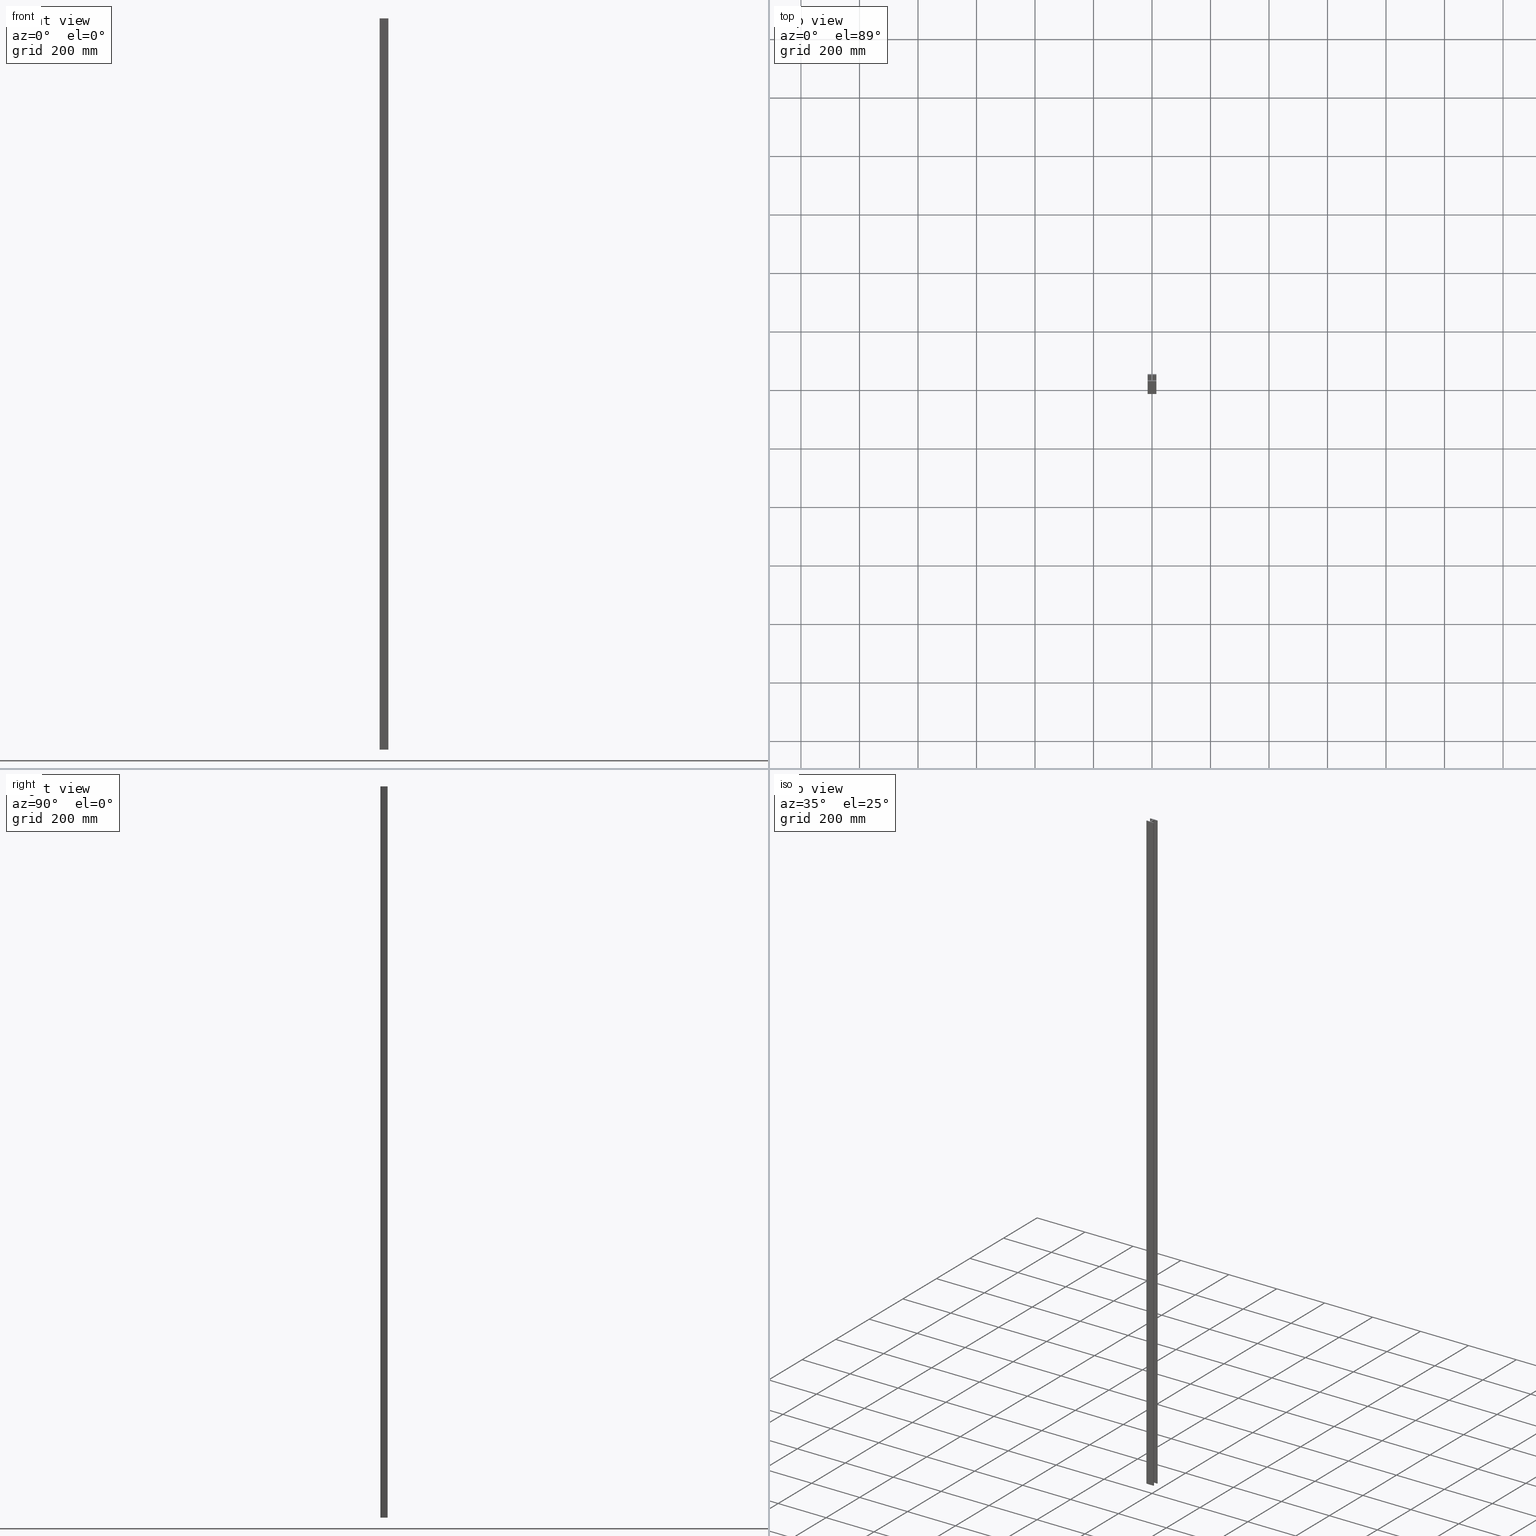
[diagram: canonical four-view strip — front | top / right | iso, engineering-drawing reading convention]
A machine part, canonical four-view strip (front | top / right | iso — engineering-drawing reading convention). The complete STEP part file that produces these views, byte-faithful:
ISO-10303-21;
HEADER;
FILE_DESCRIPTION (( 'STEP AP203' ),
    '1' );
FILE_NAME ('25 x 30 I-Beam.STEP',
    '2014-01-25T00:36:31',
    ( 'John Massey' ),
    ( 'Microsoft' ),
    'SwSTEP 2.0',
    'SolidWorks 2014',
    '' );
FILE_SCHEMA (( 'CONFIG_CONTROL_DESIGN' ));
ENDSEC;

DATA;
#1 = VECTOR ( 'NONE', #529, 1000.000000000000000 ) ;
#2 = VERTEX_POINT ( 'NONE', #55 ) ;
#3 = ORIENTED_EDGE ( 'NONE', *, *, #459, .T. ) ;
#4 = CARTESIAN_POINT ( 'NONE',  ( 14.70000000000000300, 12.19999999999999800, 1250.000000000000000 ) ) ;
#5 = DIRECTION ( 'NONE',  ( 1.000000000000000000, 0.0000000000000000000, 0.0000000000000000000 ) ) ;
#6 = AXIS2_PLACEMENT_3D ( 'NONE', #198, #188, #185 ) ;
#7 = CARTESIAN_POINT ( 'NONE',  ( -15.00000000000000200, 12.19999999999999900, 1250.000000000000000 ) ) ;
#8 = AXIS2_PLACEMENT_3D ( 'NONE', #915, #914, #912 ) ;
#9 = CARTESIAN_POINT ( 'NONE',  ( 15.00000000000000200, -12.19999999999999900, 1250.000000000000000 ) ) ;
#10 = LINE ( 'NONE', #406, #724 ) ;
#11 = VECTOR ( 'NONE', #699, 1000.000000000000000 ) ;
#12 = DIRECTION ( 'NONE',  ( 0.0000000000000000000, 0.0000000000000000000, 1.000000000000000000 ) ) ;
#13 = LINE ( 'NONE', #527, #308 ) ;
#14 = DIRECTION ( 'NONE',  ( 1.000000000000000000, 0.0000000000000000000, 0.0000000000000000000 ) ) ;
#15 = ADVANCED_BREP_SHAPE_REPRESENTATION ( '25 x 30 I-Beam', ( #756, #656 ), #161 ) ;
#16 = MECHANICAL_CONTEXT ( 'NONE', #783, 'mechanical' ) ;
#17 = EDGE_CURVE ( 'NONE', #221, #868, #62, .T. ) ;
#18 = AXIS2_PLACEMENT_3D ( 'NONE', #157, #170, #176 ) ;
#19 = PERSON_AND_ORGANIZATION_ROLE ( 'classification_officer' ) ;
#20 = LINE ( 'NONE', #149, #322 ) ;
#21 = LINE ( 'NONE', #258, #595 ) ;
#22 = ORIENTED_EDGE ( 'NONE', *, *, #661, .F. ) ;
#23 = ORIENTED_EDGE ( 'NONE', *, *, #296, .F. ) ;
#24 = DIRECTION ( 'NONE',  ( 1.000000000000000000, -1.371322905910519400E-016, 0.0000000000000000000 ) ) ;
#25 = DIRECTION ( 'NONE',  ( 0.0000000000000000000, 0.0000000000000000000, 1.000000000000000000 ) ) ;
#26 = LINE ( 'NONE', #120, #541 ) ;
#27 = LINE ( 'NONE', #385, #397 ) ;
#28 = CARTESIAN_POINT ( 'NONE',  ( -14.70000000000000300, -12.19999999999999800, 1250.000000000000000 ) ) ;
#29 = ORIENTED_EDGE ( 'NONE', *, *, #753, .T. ) ;
#30 = PLANE ( 'NONE',  #8 ) ;
#31 = ORIENTED_EDGE ( 'NONE', *, *, #356, .T. ) ;
#32 = ORIENTED_EDGE ( 'NONE', *, *, #17, .F. ) ;
#33 = CARTESIAN_POINT ( 'NONE',  ( -14.70000000000000300, -12.49999999999999600, -1250.000000000000000 ) ) ;
#34 = VERTEX_POINT ( 'NONE', #691 ) ;
#35 = AXIS2_PLACEMENT_3D ( 'NONE', #886, #883, #878 ) ;
#36 = EDGE_CURVE ( 'NONE', #553, #221, #264, .T. ) ;
#37 = DIRECTION ( 'NONE',  ( -1.000000000000000000, 0.0000000000000000000, 0.0000000000000000000 ) ) ;
#38 = CARTESIAN_POINT ( 'NONE',  ( 15.00000000000000500, 9.299999999999995400, 1250.000000000000000 ) ) ;
#39 = VECTOR ( 'NONE', #543, 1000.000000000000000 ) ;
#40 = VECTOR ( 'NONE', #270, 1000.000000000000000 ) ;
#41 = LINE ( 'NONE', #546, #199 ) ;
#42 = DIRECTION ( 'NONE',  ( 1.000000000000000000, 0.0000000000000000000, 0.0000000000000000000 ) ) ;
#43 = ADVANCED_FACE ( 'NONE', ( #836 ), #90, .F. ) ;
#44 = FACE_OUTER_BOUND ( 'NONE', #552, .T. ) ;
#45 = DIRECTION ( 'NONE',  ( 0.0000000000000000000, 0.0000000000000000000, 1.000000000000000000 ) ) ;
#46 = EDGE_LOOP ( 'NONE', ( #106, #325, #400, #663 ) ) ;
#47 = EDGE_LOOP ( 'NONE', ( #263, #801, #186, #363 ) ) ;
#48 = CARTESIAN_POINT ( 'NONE',  ( 14.70000000000000300, 9.299999999999995400, -1250.000000000000000 ) ) ;
#49 = ORIENTED_EDGE ( 'NONE', *, *, #605, .F. ) ;
#50 = DIRECTION ( 'NONE',  ( -0.0000000000000000000, -0.0000000000000000000, -1.000000000000000000 ) ) ;
#51 = DIRECTION ( 'NONE',  ( -1.196361017915038100E-015, -1.000000000000000000, 0.0000000000000000000 ) ) ;
#52 = CARTESIAN_POINT ( 'NONE',  ( 14.70000000000000300, 12.49999999999999600, -1250.000000000000000 ) ) ;
#53 = AXIS2_PLACEMENT_3D ( 'NONE', #251, #224, #217 ) ;
#54 = VECTOR ( 'NONE', #765, 1000.000000000000000 ) ;
#55 = CARTESIAN_POINT ( 'NONE',  ( 1.750000000000001300, 8.699999999999995700, 1250.000000000000000 ) ) ;
#56 = AXIS2_PLACEMENT_3D ( 'NONE', #112, #79, #24 ) ;
#57 = EDGE_LOOP ( 'NONE', ( #696, #650, #126, #535 ) ) ;
#58 = CARTESIAN_POINT ( 'NONE',  ( 15.00000000000000500, 9.299999999999995400, -1250.000000000000000 ) ) ;
#59 = ORIENTED_EDGE ( 'NONE', *, *, #393, .T. ) ;
#60 = CARTESIAN_POINT ( 'NONE',  ( -15.00000000000000500, -9.299999999999995400, -1250.000000000000000 ) ) ;
#61 = ORIENTED_EDGE ( 'NONE', *, *, #459, .F. ) ;
#62 = LINE ( 'NONE', #7, #799 ) ;
#63 = CARTESIAN_POINT ( 'NONE',  ( -15.00000000000000200, 12.19999999999999900, 1250.000000000000000 ) ) ;
#64 = DIRECTION ( 'NONE',  ( -0.0000000000000000000, -0.0000000000000000000, -1.000000000000000000 ) ) ;
#65 = DIRECTION ( 'NONE',  ( -1.000000000000000000, 1.371322905910519400E-016, 0.0000000000000000000 ) ) ;
#66 = CARTESIAN_POINT ( 'NONE',  ( 14.70000000000000100, -8.999999999999996400, -1250.000000000000000 ) ) ;
#67 = EDGE_CURVE ( 'NONE', #868, #585, #312, .T. ) ;
#68 = AXIS2_PLACEMENT_3D ( 'NONE', #295, #426, #12 ) ;
#69 = LINE ( 'NONE', #33, #761 ) ;
#70 = CARTESIAN_POINT ( 'NONE',  ( -14.70000000000000300, -12.19999999999999800, 1250.000000000000000 ) ) ;
#71 = DIRECTION ( 'NONE',  ( -1.000000000000000000, 0.0000000000000000000, 0.0000000000000000000 ) ) ;
#72 = DIRECTION ( 'NONE',  ( -0.0000000000000000000, 0.0000000000000000000, -1.000000000000000000 ) ) ;
#73 = LINE ( 'NONE', #551, #387 ) ;
#74 = DIRECTION ( 'NONE',  ( 1.196361017915038300E-015, 1.000000000000000000, 0.0000000000000000000 ) ) ;
#75 = ORIENTED_EDGE ( 'NONE', *, *, #225, .T. ) ;
#76 = DIRECTION ( 'NONE',  ( 1.000000000000000000, 0.0000000000000000000, -0.0000000000000000000 ) ) ;
#77 = CARTESIAN_POINT ( 'NONE',  ( -1.750000000000001300, -8.699999999999995700, 1250.000000000000000 ) ) ;
#78 = CARTESIAN_POINT ( 'NONE',  ( -1.750000000000000200, 8.699999999999995700, 1250.000000000000000 ) ) ;
#79 = DIRECTION ( 'NONE',  ( -1.371322905910519400E-016, -1.000000000000000000, 0.0000000000000000000 ) ) ;
#80 = DIRECTION ( 'NONE',  ( -0.0000000000000000000, -0.0000000000000000000, -1.000000000000000000 ) ) ;
#81 = DIRECTION ( 'NONE',  ( 1.000000000000000000, 0.0000000000000000000, 0.0000000000000000000 ) ) ;
#82 = LINE ( 'NONE', #58, #776 ) ;
#83 = CARTESIAN_POINT ( 'NONE',  ( -15.00000000000000200, 12.19999999999999900, -1250.000000000000000 ) ) ;
#84 = ORIENTED_EDGE ( 'NONE', *, *, #655, .T. ) ;
#85 = EDGE_LOOP ( 'NONE', ( #905, #49, #893, #587 ) ) ;
#86 = ORIENTED_EDGE ( 'NONE', *, *, #245, .F. ) ;
#87 = CARTESIAN_POINT ( 'NONE',  ( 14.70000000000000300, 12.19999999999999800, 1250.000000000000000 ) ) ;
#88 = DIRECTION ( 'NONE',  ( 0.0000000000000000000, 0.0000000000000000000, 1.000000000000000000 ) ) ;
#89 = AXIS2_PLACEMENT_3D ( 'NONE', #78, #76, #72 ) ;
#90 = PLANE ( 'NONE',  #56 ) ;
#91 = EDGE_CURVE ( 'NONE', #355, #553, #851, .T. ) ;
#92 = ADVANCED_FACE ( 'NONE', ( #569 ), #30, .F. ) ;
#93 = APPLICATION_CONTEXT ( 'configuration controlled 3d designs of mechanical parts and assemblies' ) ;
#94 = VECTOR ( 'NONE', #137, 1000.000000000000000 ) ;
#95 = CIRCLE ( 'NONE', #730, 0.2999999999999999300 ) ;
#96 = VECTOR ( 'NONE', #816, 1000.000000000000000 ) ;
#97 = APPROVAL_STATUS ( 'not_yet_approved' ) ;
#98 = LINE ( 'NONE', #894, #792 ) ;
#99 = VECTOR ( 'NONE', #51, 1000.000000000000000 ) ;
#100 = VECTOR ( 'NONE', #481, 1000.000000000000000 ) ;
#101 = CC_DESIGN_APPROVAL ( #109, ( #153 ) ) ;
#102 = CIRCLE ( 'NONE', #305, 0.2999999999999999300 ) ;
#103 = ORIENTED_EDGE ( 'NONE', *, *, #495, .T. ) ;
#104 = FACE_OUTER_BOUND ( 'NONE', #501, .T. ) ;
#105 = CARTESIAN_POINT ( 'NONE',  ( -15.00000000000000200, 12.19999999999999900, -1250.000000000000000 ) ) ;
#106 = ORIENTED_EDGE ( 'NONE', *, *, #304, .T. ) ;
#107 = VERTEX_POINT ( 'NONE', #904 ) ;
#108 = EDGE_CURVE ( 'NONE', #166, #585, #612, .T. ) ;
#109 = APPROVAL ( #300, 'UNSPECIFIED' ) ;
#110 = DIRECTION ( 'NONE',  ( 1.000000000000000000, 1.371322905910519400E-016, 0.0000000000000000000 ) ) ;
#111 = FACE_OUTER_BOUND ( 'NONE', #706, .T. ) ;
#112 = CARTESIAN_POINT ( 'NONE',  ( 14.70000000000000100, -8.999999999999996400, 1250.000000000000000 ) ) ;
#113 = AXIS2_PLACEMENT_3D ( 'NONE', #292, #852, #420 ) ;
#114 = ORIENTED_EDGE ( 'NONE', *, *, #36, .T. ) ;
#115 = CIRCLE ( 'NONE', #817, 0.2999999999999992700 ) ;
#116 = VERTEX_POINT ( 'NONE', #899 ) ;
#117 = PLANE ( 'NONE',  #89 ) ;
#118 = ORIENTED_EDGE ( 'NONE', *, *, #659, .T. ) ;
#119 = DIRECTION ( 'NONE',  ( -0.0000000000000000000, -0.0000000000000000000, -1.000000000000000000 ) ) ;
#120 = CARTESIAN_POINT ( 'NONE',  ( 2.050000000000000700, 8.999999999999994700, 1250.000000000000000 ) ) ;
#121 = CARTESIAN_POINT ( 'NONE',  ( -1.750000000000000200, 8.699999999999995700, 1250.000000000000000 ) ) ;
#122 = ORIENTED_EDGE ( 'NONE', *, *, #721, .T. ) ;
#123 = DIRECTION ( 'NONE',  ( -0.0000000000000000000, -0.0000000000000000000, -1.000000000000000000 ) ) ;
#124 = CARTESIAN_POINT ( 'NONE',  ( 2.050000000000000700, -8.999999999999996400, -1250.000000000000000 ) ) ;
#125 = DIRECTION ( 'NONE',  ( 1.000000000000000000, 0.0000000000000000000, 0.0000000000000000000 ) ) ;
#126 = ORIENTED_EDGE ( 'NONE', *, *, #401, .F. ) ;
#127 = DIRECTION ( 'NONE',  ( 0.0000000000000000000, 0.0000000000000000000, 1.000000000000000000 ) ) ;
#128 = EDGE_CURVE ( 'NONE', #221, #166, #250, .T. ) ;
#129 = CARTESIAN_POINT ( 'NONE',  ( -14.70000000000000300, -12.19999999999999800, -1250.000000000000000 ) ) ;
#130 = CARTESIAN_POINT ( 'NONE',  ( 14.70000000000000300, 12.49999999999999600, 1250.000000000000000 ) ) ;
#131 = CARTESIAN_POINT ( 'NONE',  ( 14.70000000000000100, -8.999999999999996400, 1250.000000000000000 ) ) ;
#132 = VECTOR ( 'NONE', #332, 1000.000000000000000 ) ;
#133 = ORIENTED_EDGE ( 'NONE', *, *, #442, .T. ) ;
#134 = DIRECTION ( 'NONE',  ( -0.0000000000000000000, -0.0000000000000000000, -1.000000000000000000 ) ) ;
#135 = CARTESIAN_POINT ( 'NONE',  ( -15.00000000000000400, 9.299999999999995400, -1250.000000000000000 ) ) ;
#136 = CARTESIAN_POINT ( 'NONE',  ( -14.70000000000000300, 12.49999999999999600, 1250.000000000000000 ) ) ;
#137 = DIRECTION ( 'NONE',  ( 1.196361017915038100E-015, -1.000000000000000000, 0.0000000000000000000 ) ) ;
#138 = CARTESIAN_POINT ( 'NONE',  ( -15.00000000000000500, -9.299999999999995400, 1250.000000000000000 ) ) ;
#139 = CARTESIAN_POINT ( 'NONE',  ( 14.70000000000000100, 8.999999999999994700, -1250.000000000000000 ) ) ;
#140 = CARTESIAN_POINT ( 'NONE',  ( 14.70000000000000100, -8.999999999999996400, -1250.000000000000000 ) ) ;
#141 = VERTEX_POINT ( 'NONE', #896 ) ;
#142 = CARTESIAN_POINT ( 'NONE',  ( 14.70000000000000300, 12.19999999999999800, -1250.000000000000000 ) ) ;
#143 = ORIENTED_EDGE ( 'NONE', *, *, #623, .T. ) ;
#144 = SECURITY_CLASSIFICATION ( '', '', #429 ) ;
#145 = ORIENTED_EDGE ( 'NONE', *, *, #401, .T. ) ;
#146 = ORIENTED_EDGE ( 'NONE', *, *, #528, .T. ) ;
#147 = AXIS2_PLACEMENT_3D ( 'NONE', #688, #686, #684 ) ;
#148 = DIRECTION ( 'NONE',  ( -0.0000000000000000000, -0.0000000000000000000, -1.000000000000000000 ) ) ;
#149 = CARTESIAN_POINT ( 'NONE',  ( -14.70000000000000300, -12.49999999999999600, 1250.000000000000000 ) ) ;
#150 = AXIS2_PLACEMENT_3D ( 'NONE', #921, #88, #81 ) ;
#151 = DIRECTION ( 'NONE',  ( 1.000000000000000000, 0.0000000000000000000, 0.0000000000000000000 ) ) ;
#152 = EDGE_CURVE ( 'NONE', #585, #810, #241, .T. ) ;
#153 = PRODUCT_DEFINITION_FORMATION_WITH_SPECIFIED_SOURCE ( 'ANY', '', #873, .NOT_KNOWN. ) ;
#154 = CARTESIAN_POINT ( 'NONE',  ( 14.70000000000000100, 8.999999999999994700, 1250.000000000000000 ) ) ;
#155 = CIRCLE ( 'NONE', #171, 0.2999999999999999300 ) ;
#156 =( NAMED_UNIT ( * ) PLANE_ANGLE_UNIT ( ) SI_UNIT ( $, .RADIAN. ) );
#157 = CARTESIAN_POINT ( 'NONE',  ( 14.70000000000000300, -12.19999999999999800, 1250.000000000000000 ) ) ;
#158 = ORIENTED_EDGE ( 'NONE', *, *, #348, .T. ) ;
#159 = APPROVAL_STATUS ( 'not_yet_approved' ) ;
#160 = ORIENTED_EDGE ( 'NONE', *, *, #374, .T. ) ;
#161 =( GEOMETRIC_REPRESENTATION_CONTEXT ( 3 ) GLOBAL_UNCERTAINTY_ASSIGNED_CONTEXT ( ( #591 ) ) GLOBAL_UNIT_ASSIGNED_CONTEXT ( ( #570, #156, #641 ) ) REPRESENTATION_CONTEXT ( 'NONE', 'WORKASPACE' ) );
#162 = EDGE_CURVE ( 'NONE', #445, #609, #275, .T. ) ;
#163 = EDGE_LOOP ( 'NONE', ( #3, #665, #341, #729 ) ) ;
#164 = ORIENTED_EDGE ( 'NONE', *, *, #857, .T. ) ;
#165 = EDGE_CURVE ( 'NONE', #478, #445, #98, .T. ) ;
#166 = VERTEX_POINT ( 'NONE', #855 ) ;
#167 = ORIENTED_EDGE ( 'NONE', *, *, #67, .T. ) ;
#168 = ORIENTED_EDGE ( 'NONE', *, *, #875, .T. ) ;
#169 = ORIENTED_EDGE ( 'NONE', *, *, #67, .F. ) ;
#170 = DIRECTION ( 'NONE',  ( -0.0000000000000000000, -0.0000000000000000000, -1.000000000000000000 ) ) ;
#171 = AXIS2_PLACEMENT_3D ( 'NONE', #28, #25, #14 ) ;
#172 = ORIENTED_EDGE ( 'NONE', *, *, #416, .F. ) ;
#173 = ORIENTED_EDGE ( 'NONE', *, *, #424, .T. ) ;
#174 = ORIENTED_EDGE ( 'NONE', *, *, #661, .T. ) ;
#175 = ORIENTED_EDGE ( 'NONE', *, *, #304, .F. ) ;
#176 = DIRECTION ( 'NONE',  ( -1.000000000000000000, 0.0000000000000000000, 0.0000000000000000000 ) ) ;
#177 = DIRECTION ( 'NONE',  ( -0.0000000000000000000, -0.0000000000000000000, -1.000000000000000000 ) ) ;
#178 = ADVANCED_FACE ( 'NONE', ( #44 ), #739, .F. ) ;
#179 = APPROVAL_PERSON_ORGANIZATION ( #257, #460, #646 ) ;
#180 = CARTESIAN_POINT ( 'NONE',  ( 14.70000000000000300, 9.299999999999995400, 1250.000000000000000 ) ) ;
#181 = VERTEX_POINT ( 'NONE', #834 ) ;
#182 = ORIENTED_EDGE ( 'NONE', *, *, #206, .F. ) ;
#183 = ADVANCED_FACE ( 'NONE', ( #431 ), #895, .T. ) ;
#184 = ORIENTED_EDGE ( 'NONE', *, *, #442, .F. ) ;
#185 = DIRECTION ( 'NONE',  ( 1.000000000000000000, 0.0000000000000000000, -0.0000000000000000000 ) ) ;
#186 = ORIENTED_EDGE ( 'NONE', *, *, #225, .F. ) ;
#187 = VERTEX_POINT ( 'NONE', #824 ) ;
#188 = DIRECTION ( 'NONE',  ( 0.0000000000000000000, 0.0000000000000000000, 1.000000000000000000 ) ) ;
#189 = ORIENTED_EDGE ( 'NONE', *, *, #162, .F. ) ;
#190 = PLANE ( 'NONE',  #6 ) ;
#191 = DIRECTION ( 'NONE',  ( -1.000000000000000000, 0.0000000000000000000, 0.0000000000000000000 ) ) ;
#192 = CARTESIAN_POINT ( 'NONE',  ( -14.70000000000000300, 12.49999999999999600, 1250.000000000000000 ) ) ;
#193 = DIRECTION ( 'NONE',  ( -0.0000000000000000000, -0.0000000000000000000, -1.000000000000000000 ) ) ;
#194 = DIRECTION ( 'NONE',  ( 1.196361017915038100E-015, -1.000000000000000000, 0.0000000000000000000 ) ) ;
#195 = CIRCLE ( 'NONE', #506, 0.2999999999999992700 ) ;
#196 = EDGE_CURVE ( 'NONE', #449, #810, #874, .T. ) ;
#197 = FACE_OUTER_BOUND ( 'NONE', #744, .T. ) ;
#198 = CARTESIAN_POINT ( 'NONE',  ( 14.70000000000000300, -9.299999999999995400, -1250.000000000000000 ) ) ;
#199 = VECTOR ( 'NONE', #538, 1000.000000000000000 ) ;
#200 = ORIENTED_EDGE ( 'NONE', *, *, #287, .F. ) ;
#201 = CARTESIAN_POINT ( 'NONE',  ( -15.00000000000000400, -12.19999999999999900, 1250.000000000000000 ) ) ;
#202 = EDGE_CURVE ( 'NONE', #107, #34, #230, .T. ) ;
#203 = AXIS2_PLACEMENT_3D ( 'NONE', #488, #219, #698 ) ;
#204 = FACE_OUTER_BOUND ( 'NONE', #491, .T. ) ;
#205 = CARTESIAN_POINT ( 'NONE',  ( 15.00000000000000500, 9.299999999999995400, 1250.000000000000000 ) ) ;
#206 = EDGE_CURVE ( 'NONE', #277, #329, #694, .T. ) ;
#207 = CYLINDRICAL_SURFACE ( 'NONE', #633, 0.2999999999999990500 ) ;
#208 = ORIENTED_EDGE ( 'NONE', *, *, #559, .T. ) ;
#209 = EDGE_LOOP ( 'NONE', ( #779, #499, #906, #29 ) ) ;
#210 = DIRECTION ( 'NONE',  ( -1.196361017915038100E-015, 1.000000000000000000, 0.0000000000000000000 ) ) ;
#211 = ORIENTED_EDGE ( 'NONE', *, *, #753, .F. ) ;
#212 = CARTESIAN_POINT ( 'NONE',  ( -15.00000000000000500, -9.299999999999995400, -1250.000000000000000 ) ) ;
#213 = EDGE_CURVE ( 'NONE', #372, #277, #521, .T. ) ;
#214 = CARTESIAN_POINT ( 'NONE',  ( 15.00000000000000200, -12.19999999999999900, -1250.000000000000000 ) ) ;
#215 = DIRECTION ( 'NONE',  ( 1.000000000000000000, 0.0000000000000000000, 0.0000000000000000000 ) ) ;
#216 = ADVANCED_FACE ( 'NONE', ( #273 ), #289, .T. ) ;
#217 = DIRECTION ( 'NONE',  ( -1.000000000000000000, 1.371322905910519400E-016, 0.0000000000000000000 ) ) ;
#218 = CYLINDRICAL_SURFACE ( 'NONE', #785, 0.2999999999999999300 ) ;
#219 = DIRECTION ( 'NONE',  ( -1.000000000000000000, -1.196361017915038300E-015, 0.0000000000000000000 ) ) ;
#220 = CYLINDRICAL_SURFACE ( 'NONE', #18, 0.2999999999999999300 ) ;
#221 = VERTEX_POINT ( 'NONE', #767 ) ;
#222 = VERTEX_POINT ( 'NONE', #763 ) ;
#223 = DIRECTION ( 'NONE',  ( -1.000000000000000000, 0.0000000000000000000, 0.0000000000000000000 ) ) ;
#224 = DIRECTION ( 'NONE',  ( 1.371322905910519400E-016, 1.000000000000000000, -0.0000000000000000000 ) ) ;
#225 = EDGE_CURVE ( 'NONE', #166, #449, #607, .T. ) ;
#226 = VERTEX_POINT ( 'NONE', #784 ) ;
#227 = PERSON_AND_ORGANIZATION_ROLE ( 'creator' ) ;
#228 = AXIS2_PLACEMENT_3D ( 'NONE', #286, #271, #311 ) ;
#229 = VECTOR ( 'NONE', #600, 1000.000000000000000 ) ;
#230 = LINE ( 'NONE', #829, #766 ) ;
#231 = ORIENTED_EDGE ( 'NONE', *, *, #294, .T. ) ;
#232 = VERTEX_POINT ( 'NONE', #773 ) ;
#233 = DIRECTION ( 'NONE',  ( 1.000000000000000000, 0.0000000000000000000, 0.0000000000000000000 ) ) ;
#234 = AXIS2_PLACEMENT_3D ( 'NONE', #262, #261, #259 ) ;
#235 = ORIENTED_EDGE ( 'NONE', *, *, #470, .T. ) ;
#236 = DIRECTION ( 'NONE',  ( 0.0000000000000000000, 0.0000000000000000000, 1.000000000000000000 ) ) ;
#237 = ORIENTED_EDGE ( 'NONE', *, *, #775, .F. ) ;
#238 = EDGE_CURVE ( 'NONE', #609, #687, #849, .T. ) ;
#239 = EDGE_LOOP ( 'NONE', ( #235, #640, #278, #158, #908, #675, #477, #625, #168, #793, #114, #260, #75, #791, #436, #160, #145, #133, #749, #208, #84, #536, #59, #819 ) ) ;
#240 = ORIENTED_EDGE ( 'NONE', *, *, #636, .F. ) ;
#241 = CIRCLE ( 'NONE', #35, 0.2999999999999999300 ) ;
#242 = ORIENTED_EDGE ( 'NONE', *, *, #623, .F. ) ;
#243 = CARTESIAN_POINT ( 'NONE',  ( -14.70000000000000300, -9.299999999999995400, 1250.000000000000000 ) ) ;
#244 = CIRCLE ( 'NONE', #831, 0.2999999999999999300 ) ;
#245 = EDGE_CURVE ( 'NONE', #810, #430, #487, .T. ) ;
#246 = AXIS2_PLACEMENT_3D ( 'NONE', #87, #564, #151 ) ;
#247 = DIRECTION ( 'NONE',  ( 1.196361017915038100E-015, 1.000000000000000000, 0.0000000000000000000 ) ) ;
#248 = EDGE_CURVE ( 'NONE', #181, #687, #869, .T. ) ;
#249 = CARTESIAN_POINT ( 'NONE',  ( 15.00000000000000500, 9.299999999999995400, -1250.000000000000000 ) ) ;
#250 = LINE ( 'NONE', #918, #654 ) ;
#251 = CARTESIAN_POINT ( 'NONE',  ( -14.70000000000000100, 8.999999999999996400, 1250.000000000000000 ) ) ;
#252 = ADVANCED_FACE ( 'NONE', ( #104 ), #734, .F. ) ;
#253 = AXIS2_PLACEMENT_3D ( 'NONE', #243, #236, #233 ) ;
#254 = EDGE_CURVE ( 'NONE', #445, #181, #476, .T. ) ;
#255 = PERSON_AND_ORGANIZATION ( #812, #866 ) ;
#256 = PLANE ( 'NONE',  #53 ) ;
#257 = PERSON_AND_ORGANIZATION ( #812, #866 ) ;
#258 = CARTESIAN_POINT ( 'NONE',  ( 2.050000000000000700, 8.999999999999994700, -1250.000000000000000 ) ) ;
#259 = DIRECTION ( 'NONE',  ( -1.000000000000000000, 0.0000000000000000000, 0.0000000000000000000 ) ) ;
#260 = ORIENTED_EDGE ( 'NONE', *, *, #128, .T. ) ;
#261 = DIRECTION ( 'NONE',  ( -0.0000000000000000000, -0.0000000000000000000, -1.000000000000000000 ) ) ;
#262 = CARTESIAN_POINT ( 'NONE',  ( 2.050000000000000700, 8.699999999999995700, 1250.000000000000000 ) ) ;
#263 = ORIENTED_EDGE ( 'NONE', *, *, #152, .T. ) ;
#264 = CIRCLE ( 'NONE', #150, 0.2999999999999999300 ) ;
#265 = ORIENTED_EDGE ( 'NONE', *, *, #336, .T. ) ;
#266 = EDGE_CURVE ( 'NONE', #226, #430, #299, .T. ) ;
#267 = AXIS2_PLACEMENT_3D ( 'NONE', #180, #177, #191 ) ;
#268 = DIRECTION ( 'NONE',  ( 1.000000000000000000, 1.371322905910519400E-016, 0.0000000000000000000 ) ) ;
#269 = CARTESIAN_POINT ( 'NONE',  ( -15.00000000000000500, -9.299999999999995400, 1250.000000000000000 ) ) ;
#270 = DIRECTION ( 'NONE',  ( -0.0000000000000000000, -0.0000000000000000000, -1.000000000000000000 ) ) ;
#271 = DIRECTION ( 'NONE',  ( -0.0000000000000000000, -0.0000000000000000000, -1.000000000000000000 ) ) ;
#272 = VECTOR ( 'NONE', #194, 1000.000000000000000 ) ;
#273 = FACE_OUTER_BOUND ( 'NONE', #163, .T. ) ;
#274 = EDGE_LOOP ( 'NONE', ( #652, #514, #184, #398 ) ) ;
#275 = LINE ( 'NONE', #888, #809 ) ;
#276 = DIRECTION ( 'NONE',  ( 1.000000000000000000, 0.0000000000000000000, 0.0000000000000000000 ) ) ;
#277 = VERTEX_POINT ( 'NONE', #682 ) ;
#278 = ORIENTED_EDGE ( 'NONE', *, *, #254, .T. ) ;
#279 = ADVANCED_FACE ( 'NONE', ( #197 ), #677, .F. ) ;
#280 = DIRECTION ( 'NONE',  ( 0.0000000000000000000, 0.0000000000000000000, 1.000000000000000000 ) ) ;
#281 = DIRECTION ( 'NONE',  ( -0.0000000000000000000, -0.0000000000000000000, -1.000000000000000000 ) ) ;
#282 = CARTESIAN_POINT ( 'NONE',  ( 14.70000000000000300, -9.299999999999995400, 1250.000000000000000 ) ) ;
#283 = ADVANCED_FACE ( 'NONE', ( #726 ), #301, .T. ) ;
#284 = FACE_OUTER_BOUND ( 'NONE', #850, .T. ) ;
#285 = PLANE ( 'NONE',  #317 ) ;
#286 = CARTESIAN_POINT ( 'NONE',  ( -14.70000000000000300, 12.19999999999999800, 1250.000000000000000 ) ) ;
#287 = EDGE_CURVE ( 'NONE', #449, #226, #438, .T. ) ;
#288 = CC_DESIGN_DATE_AND_TIME_ASSIGNMENT ( #865, #710, ( #505 ) ) ;
#289 = CYLINDRICAL_SURFACE ( 'NONE', #391, 0.2999999999999999300 ) ;
#290 = ORIENTED_EDGE ( 'NONE', *, *, #468, .F. ) ;
#291 = AXIS2_PLACEMENT_3D ( 'NONE', #837, #832, #844 ) ;
#292 = CARTESIAN_POINT ( 'NONE',  ( 2.050000000000000700, -8.699999999999995700, 1250.000000000000000 ) ) ;
#293 = VERTEX_POINT ( 'NONE', #653 ) ;
#294 = EDGE_CURVE ( 'NONE', #116, #868, #683, .T. ) ;
#295 = CARTESIAN_POINT ( 'NONE',  ( 1.750000000000000200, -8.699999999999995700, 1250.000000000000000 ) ) ;
#296 = EDGE_CURVE ( 'NONE', #430, #222, #115, .T. ) ;
#297 = LINE ( 'NONE', #201, #634 ) ;
#298 = CARTESIAN_POINT ( 'NONE',  ( 14.70000000000000100, -8.999999999999996400, 1250.000000000000000 ) ) ;
#299 = LINE ( 'NONE', #697, #11 ) ;
#300 = APPROVAL_STATUS ( 'not_yet_approved' ) ;
#301 = CYLINDRICAL_SURFACE ( 'NONE', #750, 0.2999999999999999300 ) ;
#302 = AXIS2_PLACEMENT_3D ( 'NONE', #129, #127, #125 ) ;
#303 = ORIENTED_EDGE ( 'NONE', *, *, #238, .T. ) ;
#304 = EDGE_CURVE ( 'NONE', #329, #232, #319, .T. ) ;
#305 = AXIS2_PLACEMENT_3D ( 'NONE', #282, #280, #276 ) ;
#306 = EDGE_CURVE ( 'NONE', #687, #187, #648, .T. ) ;
#307 = ORIENTED_EDGE ( 'NONE', *, *, #202, .T. ) ;
#308 = VECTOR ( 'NONE', #518, 1000.000000000000000 ) ;
#309 = EDGE_CURVE ( 'NONE', #598, #222, #833, .T. ) ;
#310 = VECTOR ( 'NONE', #813, 1000.000000000000000 ) ;
#311 = DIRECTION ( 'NONE',  ( -1.000000000000000000, 0.0000000000000000000, 0.0000000000000000000 ) ) ;
#312 = LINE ( 'NONE', #105, #99 ) ;
#313 = VERTEX_POINT ( 'NONE', #597 ) ;
#314 = DIRECTION ( 'NONE',  ( 1.000000000000000000, 0.0000000000000000000, 0.0000000000000000000 ) ) ;
#315 = DIRECTION ( 'NONE',  ( 0.0000000000000000000, 0.0000000000000000000, 1.000000000000000000 ) ) ;
#316 = EDGE_CURVE ( 'NONE', #226, #598, #446, .T. ) ;
#317 = AXIS2_PLACEMENT_3D ( 'NONE', #769, #848, #413 ) ;
#318 = ORIENTED_EDGE ( 'NONE', *, *, #470, .F. ) ;
#319 = CIRCLE ( 'NONE', #719, 0.2999999999999999300 ) ;
#320 = ORIENTED_EDGE ( 'NONE', *, *, #309, .F. ) ;
#321 = VERTEX_POINT ( 'NONE', #602 ) ;
#322 = VECTOR ( 'NONE', #119, 1000.000000000000000 ) ;
#323 = CARTESIAN_POINT ( 'NONE',  ( -14.70000000000000300, -9.299999999999995400, -1250.000000000000000 ) ) ;
#324 = CIRCLE ( 'NONE', #376, 0.2999999999999999300 ) ;
#325 = ORIENTED_EDGE ( 'NONE', *, *, #356, .F. ) ;
#326 = CARTESIAN_POINT ( 'NONE',  ( 2.050000000000000700, 8.999999999999994700, 1250.000000000000000 ) ) ;
#327 = ADVANCED_FACE ( 'NONE', ( #764 ), #207, .F. ) ;
#328 = VERTEX_POINT ( 'NONE', #558 ) ;
#329 = VERTEX_POINT ( 'NONE', #556 ) ;
#330 = ORIENTED_EDGE ( 'NONE', *, *, #348, .F. ) ;
#331 = CC_DESIGN_PERSON_AND_ORGANIZATION_ASSIGNMENT ( #830, #227, ( #505 ) ) ;
#332 = DIRECTION ( 'NONE',  ( -0.0000000000000000000, -0.0000000000000000000, -1.000000000000000000 ) ) ;
#333 = ORIENTED_EDGE ( 'NONE', *, *, #907, .T. ) ;
#334 = AXIS2_PLACEMENT_3D ( 'NONE', #745, #743, #740 ) ;
#335 = EDGE_CURVE ( 'NONE', #2, #187, #73, .T. ) ;
#336 = EDGE_CURVE ( 'NONE', #222, #456, #41, .T. ) ;
#337 = DIRECTION ( 'NONE',  ( 0.0000000000000000000, -0.0000000000000000000, -1.000000000000000000 ) ) ;
#338 = CIRCLE ( 'NONE', #560, 0.2999999999999999300 ) ;
#339 = VERTEX_POINT ( 'NONE', #586 ) ;
#340 = DIRECTION ( 'NONE',  ( 0.0000000000000000000, -1.000000000000000000, 0.0000000000000000000 ) ) ;
#341 = ORIENTED_EDGE ( 'NONE', *, *, #509, .F. ) ;
#342 = VERTEX_POINT ( 'NONE', #537 ) ;
#343 = CARTESIAN_POINT ( 'NONE',  ( 14.70000000000000300, 12.49999999999999600, 1250.000000000000000 ) ) ;
#344 = PLANE ( 'NONE',  #352 ) ;
#345 = CARTESIAN_POINT ( 'NONE',  ( 14.70000000000000300, 9.299999999999995400, 1250.000000000000000 ) ) ;
#346 = CARTESIAN_POINT ( 'NONE',  ( -2.050000000000000700, -8.999999999999994700, 1250.000000000000000 ) ) ;
#347 = CARTESIAN_POINT ( 'NONE',  ( -1.750000000000001300, -8.699999999999995700, -1250.000000000000000 ) ) ;
#348 = EDGE_CURVE ( 'NONE', #181, #2, #715, .T. ) ;
#349 = FACE_OUTER_BOUND ( 'NONE', #548, .T. ) ;
#350 = DIRECTION ( 'NONE',  ( -1.196361017915038300E-015, 1.000000000000000000, 0.0000000000000000000 ) ) ;
#351 = ORIENTED_EDGE ( 'NONE', *, *, #705, .T. ) ;
#352 = AXIS2_PLACEMENT_3D ( 'NONE', #343, #340, #337 ) ;
#353 = DIRECTION ( 'NONE',  ( -1.000000000000000000, 0.0000000000000000000, 0.0000000000000000000 ) ) ;
#354 = EDGE_LOOP ( 'NONE', ( #146, #741, #237, #31 ) ) ;
#355 = VERTEX_POINT ( 'NONE', #530 ) ;
#356 = EDGE_CURVE ( 'NONE', #671, #232, #13, .T. ) ;
#357 = ORIENTED_EDGE ( 'NONE', *, *, #17, .T. ) ;
#358 = CARTESIAN_POINT ( 'NONE',  ( -15.00000000000000500, -9.299999999999995400, 1250.000000000000000 ) ) ;
#359 = DIRECTION ( 'NONE',  ( 1.000000000000000000, 1.196361017915038300E-015, -0.0000000000000000000 ) ) ;
#360 = VECTOR ( 'NONE', #447, 1000.000000000000000 ) ;
#361 = EDGE_CURVE ( 'NONE', #797, #456, #485, .T. ) ;
#362 = AXIS2_PLACEMENT_3D ( 'NONE', #4, #80, #411 ) ;
#363 = ORIENTED_EDGE ( 'NONE', *, *, #108, .T. ) ;
#364 = ORIENTED_EDGE ( 'NONE', *, *, #589, .T. ) ;
#365 = CARTESIAN_POINT ( 'NONE',  ( 0.0000000000000000000, 0.0000000000000000000, 0.0000000000000000000 ) ) ;
#366 = VERTEX_POINT ( 'NONE', #510 ) ;
#367 = ORIENTED_EDGE ( 'NONE', *, *, #424, .F. ) ;
#368 = PERSON_AND_ORGANIZATION_ROLE ( 'creator' ) ;
#369 = FACE_OUTER_BOUND ( 'NONE', #85, .T. ) ;
#370 = VERTEX_POINT ( 'NONE', #516 ) ;
#371 = VECTOR ( 'NONE', #517, 1000.000000000000000 ) ;
#372 = VERTEX_POINT ( 'NONE', #522 ) ;
#373 = CARTESIAN_POINT ( 'NONE',  ( -15.00000000000000500, -9.299999999999995400, 1250.000000000000000 ) ) ;
#374 = EDGE_CURVE ( 'NONE', #598, #797, #647, .T. ) ;
#375 = CC_DESIGN_APPROVAL ( #460, ( #505 ) ) ;
#376 = AXIS2_PLACEMENT_3D ( 'NONE', #323, #315, #314 ) ;
#377 = PLANE ( 'NONE',  #433 ) ;
#378 = VECTOR ( 'NONE', #123, 1000.000000000000000 ) ;
#379 = FACE_OUTER_BOUND ( 'NONE', #462, .T. ) ;
#380 = ORIENTED_EDGE ( 'NONE', *, *, #248, .T. ) ;
#381 = EDGE_CURVE ( 'NONE', #456, #321, #500, .T. ) ;
#382 = CARTESIAN_POINT ( 'NONE',  ( -14.70000000000000100, 8.999999999999996400, 1250.000000000000000 ) ) ;
#383 = DIRECTION ( 'NONE',  ( -1.000000000000000000, -1.371322905910519400E-016, 0.0000000000000000000 ) ) ;
#384 = VECTOR ( 'NONE', #134, 1000.000000000000000 ) ;
#385 = CARTESIAN_POINT ( 'NONE',  ( -2.050000000000000700, -8.999999999999994700, 1250.000000000000000 ) ) ;
#386 = CYLINDRICAL_SURFACE ( 'NONE', #228, 0.2999999999999999300 ) ;
#387 = VECTOR ( 'NONE', #540, 1000.000000000000000 ) ;
#388 = VERTEX_POINT ( 'NONE', #484 ) ;
#389 = DIRECTION ( 'NONE',  ( -1.000000000000000000, 0.0000000000000000000, 0.0000000000000000000 ) ) ;
#390 = ADVANCED_FACE ( 'NONE', ( #576 ), #479, .F. ) ;
#391 = AXIS2_PLACEMENT_3D ( 'NONE', #782, #803, #778 ) ;
#392 = DIRECTION ( 'NONE',  ( -0.0000000000000000000, -0.0000000000000000000, -1.000000000000000000 ) ) ;
#393 = EDGE_CURVE ( 'NONE', #277, #671, #693, .T. ) ;
#394 = CARTESIAN_POINT ( 'NONE',  ( 2.050000000000000700, 8.699999999999995700, -1250.000000000000000 ) ) ;
#395 = EDGE_CURVE ( 'NONE', #450, #321, #489, .T. ) ;
#396 = LINE ( 'NONE', #212, #272 ) ;
#397 = VECTOR ( 'NONE', #383, 1000.000000000000000 ) ;
#398 = ORIENTED_EDGE ( 'NONE', *, *, #395, .T. ) ;
#399 = ORIENTED_EDGE ( 'NONE', *, *, #128, .F. ) ;
#400 = ORIENTED_EDGE ( 'NONE', *, *, #393, .F. ) ;
#401 = EDGE_CURVE ( 'NONE', #797, #450, #670, .T. ) ;
#402 = DIRECTION ( 'NONE',  ( -0.0000000000000000000, -0.0000000000000000000, -1.000000000000000000 ) ) ;
#403 = DIRECTION ( 'NONE',  ( 1.000000000000000000, 0.0000000000000000000, 0.0000000000000000000 ) ) ;
#404 = DIRECTION ( 'NONE',  ( 0.0000000000000000000, 0.0000000000000000000, 1.000000000000000000 ) ) ;
#405 = CARTESIAN_POINT ( 'NONE',  ( 14.70000000000000300, -9.299999999999995400, -1250.000000000000000 ) ) ;
#406 = CARTESIAN_POINT ( 'NONE',  ( -14.70000000000000100, -8.999999999999994700, 1250.000000000000000 ) ) ;
#407 = DIRECTION ( 'NONE',  ( 1.000000000000000000, 0.0000000000000000000, 0.0000000000000000000 ) ) ;
#408 = CARTESIAN_POINT ( 'NONE',  ( 15.00000000000000400, 12.19999999999999900, 1250.000000000000000 ) ) ;
#409 = CARTESIAN_POINT ( 'NONE',  ( 2.050000000000000700, -8.999999999999996400, 1250.000000000000000 ) ) ;
#410 = VECTOR ( 'NONE', #900, 1000.000000000000000 ) ;
#411 = DIRECTION ( 'NONE',  ( -1.000000000000000000, 0.0000000000000000000, 0.0000000000000000000 ) ) ;
#412 = DIRECTION ( 'NONE',  ( -1.000000000000000000, 0.0000000000000000000, 0.0000000000000000000 ) ) ;
#413 = DIRECTION ( 'NONE',  ( 1.000000000000000000, 0.0000000000000000000, -0.0000000000000000000 ) ) ;
#414 = DIRECTION ( 'NONE',  ( -0.0000000000000000000, -0.0000000000000000000, -1.000000000000000000 ) ) ;
#415 = CALENDAR_DATE ( 2014, 25, 1 ) ;
#416 = EDGE_CURVE ( 'NONE', #321, #328, #657, .T. ) ;
#417 = CC_DESIGN_DATE_AND_TIME_ASSIGNMENT ( #736, #502, ( #144 ) ) ;
#418 = ORIENTED_EDGE ( 'NONE', *, *, #294, .F. ) ;
#419 = AXIS2_PLACEMENT_3D ( 'NONE', #841, #840, #877 ) ;
#420 = DIRECTION ( 'NONE',  ( -1.000000000000000000, 0.0000000000000000000, 0.0000000000000000000 ) ) ;
#421 = ORIENTED_EDGE ( 'NONE', *, *, #567, .F. ) ;
#422 = CARTESIAN_POINT ( 'NONE',  ( -2.050000000000000700, -8.699999999999995700, 1250.000000000000000 ) ) ;
#423 = ORIENTED_EDGE ( 'NONE', *, *, #589, .F. ) ;
#424 = EDGE_CURVE ( 'NONE', #34, #566, #571, .T. ) ;
#425 = ORIENTED_EDGE ( 'NONE', *, *, #196, .T. ) ;
#426 = DIRECTION ( 'NONE',  ( -1.000000000000000000, 0.0000000000000000000, 0.0000000000000000000 ) ) ;
#427 = DIRECTION ( 'NONE',  ( 1.000000000000000000, 0.0000000000000000000, 0.0000000000000000000 ) ) ;
#428 = SHAPE_DEFINITION_REPRESENTATION ( #876, #15 ) ;
#429 = SECURITY_CLASSIFICATION_LEVEL ( 'unclassified' ) ;
#430 = VERTEX_POINT ( 'NONE', #441 ) ;
#431 = FACE_OUTER_BOUND ( 'NONE', #47, .T. ) ;
#432 = EDGE_CURVE ( 'NONE', #313, #328, #10, .T. ) ;
#433 = AXIS2_PLACEMENT_3D ( 'NONE', #373, #359, #350 ) ;
#434 = EDGE_CURVE ( 'NONE', #187, #388, #195, .T. ) ;
#435 = CYLINDRICAL_SURFACE ( 'NONE', #113, 0.2999999999999992700 ) ;
#436 = ORIENTED_EDGE ( 'NONE', *, *, #316, .T. ) ;
#437 = VERTEX_POINT ( 'NONE', #408 ) ;
#438 = LINE ( 'NONE', #651, #512 ) ;
#439 = ORIENTED_EDGE ( 'NONE', *, *, #507, .F. ) ;
#440 = ORIENTED_EDGE ( 'NONE', *, *, #254, .F. ) ;
#441 = CARTESIAN_POINT ( 'NONE',  ( -2.050000000000000700, 8.999999999999996400, -1250.000000000000000 ) ) ;
#442 = EDGE_CURVE ( 'NONE', #450, #313, #27, .T. ) ;
#443 = AXIS2_PLACEMENT_3D ( 'NONE', #629, #281, #353 ) ;
#444 = VECTOR ( 'NONE', #223, 1000.000000000000000 ) ;
#445 = VERTEX_POINT ( 'NONE', #409 ) ;
#446 = CIRCLE ( 'NONE', #700, 0.2999999999999992700 ) ;
#447 = DIRECTION ( 'NONE',  ( -1.000000000000000000, -1.371322905910519400E-016, 0.0000000000000000000 ) ) ;
#448 = ADVANCED_FACE ( 'NONE', ( #379 ), #377, .F. ) ;
#449 = VERTEX_POINT ( 'NONE', #382 ) ;
#450 = VERTEX_POINT ( 'NONE', #346 ) ;
#451 = DIRECTION ( 'NONE',  ( 1.000000000000000000, 0.0000000000000000000, 0.0000000000000000000 ) ) ;
#452 = ADVANCED_FACE ( 'NONE', ( #349 ), #344, .F. ) ;
#453 = DIRECTION ( 'NONE',  ( 0.0000000000000000000, 0.0000000000000000000, 1.000000000000000000 ) ) ;
#454 = CARTESIAN_POINT ( 'NONE',  ( 14.70000000000000300, -12.19999999999999800, 1250.000000000000000 ) ) ;
#455 = CARTESIAN_POINT ( 'NONE',  ( -2.050000000000000700, -8.999999999999994700, -1250.000000000000000 ) ) ;
#456 = VERTEX_POINT ( 'NONE', #347 ) ;
#457 = ORIENTED_EDGE ( 'NONE', *, *, #507, .T. ) ;
#458 = ORIENTED_EDGE ( 'NONE', *, *, #659, .F. ) ;
#459 = EDGE_CURVE ( 'NONE', #328, #649, #324, .T. ) ;
#460 = APPROVAL ( #159, 'UNSPECIFIED' ) ;
#461 = EDGE_LOOP ( 'NONE', ( #639, #458, #768, #545 ) ) ;
#462 = EDGE_LOOP ( 'NONE', ( #685, #550, #716, #103 ) ) ;
#463 = CARTESIAN_POINT ( 'NONE',  ( -2.050000000000000700, -8.999999999999994700, 1250.000000000000000 ) ) ;
#464 = ORIENTED_EDGE ( 'NONE', *, *, #91, .F. ) ;
#465 = DIRECTION ( 'NONE',  ( -0.0000000000000000000, -0.0000000000000000000, -1.000000000000000000 ) ) ;
#466 = DESIGN_CONTEXT ( 'detailed design', #93, 'design' ) ;
#467 = DIRECTION ( 'NONE',  ( 1.000000000000000000, 1.371322905910519400E-016, 0.0000000000000000000 ) ) ;
#468 = EDGE_CURVE ( 'NONE', #293, #388, #818, .T. ) ;
#469 = DIRECTION ( 'NONE',  ( 1.371322905910519400E-016, -1.000000000000000000, 0.0000000000000000000 ) ) ;
#470 = EDGE_CURVE ( 'NONE', #107, #478, #102, .T. ) ;
#471 = DIRECTION ( 'NONE',  ( -1.000000000000000000, 0.0000000000000000000, 0.0000000000000000000 ) ) ;
#472 = LINE ( 'NONE', #131, #378 ) ;
#473 = DIRECTION ( 'NONE',  ( -0.0000000000000000000, -0.0000000000000000000, -1.000000000000000000 ) ) ;
#474 = CARTESIAN_POINT ( 'NONE',  ( -2.050000000000000700, -8.699999999999995700, -1250.000000000000000 ) ) ;
#475 = CYLINDRICAL_SURFACE ( 'NONE', #362, 0.2999999999999999300 ) ;
#476 = CIRCLE ( 'NONE', #147, 0.2999999999999992700 ) ;
#477 = ORIENTED_EDGE ( 'NONE', *, *, #672, .T. ) ;
#478 = VERTEX_POINT ( 'NONE', #298 ) ;
#479 = PLANE ( 'NONE',  #563 ) ;
#480 = DIRECTION ( 'NONE',  ( 1.000000000000000000, -1.196361017915038300E-015, 0.0000000000000000000 ) ) ;
#481 = DIRECTION ( 'NONE',  ( 1.196361017915038100E-015, 1.000000000000000000, 0.0000000000000000000 ) ) ;
#482 = ADVANCED_FACE ( 'NONE', ( #714 ), #386, .T. ) ;
#483 = CC_DESIGN_PERSON_AND_ORGANIZATION_ASSIGNMENT ( #772, #19, ( #144 ) ) ;
#484 = CARTESIAN_POINT ( 'NONE',  ( 2.050000000000000700, 8.999999999999994700, -1250.000000000000000 ) ) ;
#485 = LINE ( 'NONE', #525, #371 ) ;
#486 = EDGE_CURVE ( 'NONE', #2, #293, #575, .T. ) ;
#487 = LINE ( 'NONE', #748, #638 ) ;
#488 = CARTESIAN_POINT ( 'NONE',  ( 15.00000000000000500, 9.299999999999995400, 1250.000000000000000 ) ) ;
#489 = LINE ( 'NONE', #463, #910 ) ;
#490 = DIRECTION ( 'NONE',  ( 0.0000000000000000000, -1.000000000000000000, 0.0000000000000000000 ) ) ;
#491 = EDGE_LOOP ( 'NONE', ( #860, #882, #200, #425 ) ) ;
#492 = CARTESIAN_POINT ( 'NONE',  ( -2.050000000000000700, -8.999999999999994700, 1250.000000000000000 ) ) ;
#493 = CIRCLE ( 'NONE', #253, 0.2999999999999999300 ) ;
#494 = CARTESIAN_POINT ( 'NONE',  ( -1.750000000000000200, 8.699999999999995700, 1250.000000000000000 ) ) ;
#495 = EDGE_CURVE ( 'NONE', #870, #649, #519, .T. ) ;
#496 = FACE_OUTER_BOUND ( 'NONE', #847, .T. ) ;
#497 = ORIENTED_EDGE ( 'NONE', *, *, #108, .F. ) ;
#498 = PERSON_AND_ORGANIZATION_ROLE ( 'design_owner' ) ;
#499 = ORIENTED_EDGE ( 'NONE', *, *, #857, .F. ) ;
#500 = CIRCLE ( 'NONE', #658, 0.2999999999999990500 ) ;
#501 = EDGE_LOOP ( 'NONE', ( #457, #421, #738, #599 ) ) ;
#502 = DATE_TIME_ROLE ( 'classification_date' ) ;
#503 = VECTOR ( 'NONE', #65, 1000.000000000000000 ) ;
#504 = VECTOR ( 'NONE', #822, 1000.000000000000000 ) ;
#505 = PRODUCT_DEFINITION ( 'UNKNOWN', '', #153, #466 ) ;
#506 = AXIS2_PLACEMENT_3D ( 'NONE', #394, #392, #389 ) ;
#507 = EDGE_CURVE ( 'NONE', #388, #808, #21, .T. ) ;
#508 = LINE ( 'NONE', #838, #54 ) ;
#509 = EDGE_CURVE ( 'NONE', #313, #870, #493, .T. ) ;
#510 = CARTESIAN_POINT ( 'NONE',  ( 14.70000000000000100, 8.999999999999994700, 1250.000000000000000 ) ) ;
#511 = ORIENTED_EDGE ( 'NONE', *, *, #434, .F. ) ;
#512 = VECTOR ( 'NONE', #643, 1000.000000000000000 ) ;
#513 = ORIENTED_EDGE ( 'NONE', *, *, #374, .F. ) ;
#514 = ORIENTED_EDGE ( 'NONE', *, *, #432, .F. ) ;
#515 = ADVANCED_FACE ( 'NONE', ( #204 ), #256, .F. ) ;
#516 = CARTESIAN_POINT ( 'NONE',  ( -14.70000000000000300, -12.49999999999999600, -1250.000000000000000 ) ) ;
#517 = DIRECTION ( 'NONE',  ( -0.0000000000000000000, -0.0000000000000000000, -1.000000000000000000 ) ) ;
#518 = DIRECTION ( 'NONE',  ( -0.0000000000000000000, -0.0000000000000000000, -1.000000000000000000 ) ) ;
#519 = LINE ( 'NONE', #269, #40 ) ;
#520 = CLOSED_SHELL ( 'NONE', ( #283, #43, #890, #913, #178, #252, #554, #864, #839, #452, #482, #692, #183, #515, #811, #619, #327, #390, #216, #448, #632, #279, #555, #92, #846, #547 ) ) ;
#521 = LINE ( 'NONE', #807, #96 ) ;
#522 = CARTESIAN_POINT ( 'NONE',  ( -14.70000000000000300, -12.49999999999999600, 1250.000000000000000 ) ) ;
#523 = VERTEX_POINT ( 'NONE', #249 ) ;
#524 = AXIS2_PLACEMENT_3D ( 'NONE', #405, #404, #403 ) ;
#525 = CARTESIAN_POINT ( 'NONE',  ( -1.750000000000001300, -8.699999999999995700, 1250.000000000000000 ) ) ;
#526 = ORIENTED_EDGE ( 'NONE', *, *, #309, .T. ) ;
#527 = CARTESIAN_POINT ( 'NONE',  ( 15.00000000000000200, -12.19999999999999900, 1250.000000000000000 ) ) ;
#528 = EDGE_CURVE ( 'NONE', #232, #34, #573, .T. ) ;
#529 = DIRECTION ( 'NONE',  ( 0.0000000000000000000, 1.000000000000000000, 0.0000000000000000000 ) ) ;
#530 = CARTESIAN_POINT ( 'NONE',  ( 14.70000000000000300, 12.49999999999999600, 1250.000000000000000 ) ) ;
#531 = ORIENTED_EDGE ( 'NONE', *, *, #381, .F. ) ;
#532 = VERTEX_POINT ( 'NONE', #205 ) ;
#533 = EDGE_CURVE ( 'NONE', #649, #141, #396, .T. ) ;
#534 = CC_DESIGN_PERSON_AND_ORGANIZATION_ASSIGNMENT ( #255, #498, ( #873 ) ) ;
#535 = ORIENTED_EDGE ( 'NONE', *, *, #361, .T. ) ;
#536 = ORIENTED_EDGE ( 'NONE', *, *, #213, .T. ) ;
#537 = CARTESIAN_POINT ( 'NONE',  ( 15.00000000000000400, 12.19999999999999900, -1250.000000000000000 ) ) ;
#538 = DIRECTION ( 'NONE',  ( 0.0000000000000000000, -1.000000000000000000, 0.0000000000000000000 ) ) ;
#539 = EDGE_CURVE ( 'NONE', #339, #141, #297, .T. ) ;
#540 = DIRECTION ( 'NONE',  ( -0.0000000000000000000, -0.0000000000000000000, -1.000000000000000000 ) ) ;
#541 = VECTOR ( 'NONE', #110, 1000.000000000000000 ) ;
#542 = AXIS2_PLACEMENT_3D ( 'NONE', #422, #414, #412 ) ;
#543 = DIRECTION ( 'NONE',  ( -0.0000000000000000000, -0.0000000000000000000, -1.000000000000000000 ) ) ;
#544 = CARTESIAN_POINT ( 'NONE',  ( 1.750000000000000200, -8.699999999999995700, 1250.000000000000000 ) ) ;
#545 = ORIENTED_EDGE ( 'NONE', *, *, #567, .T. ) ;
#546 = CARTESIAN_POINT ( 'NONE',  ( -1.750000000000000200, 8.699999999999995700, -1250.000000000000000 ) ) ;
#547 = ADVANCED_FACE ( 'NONE', ( #579 ), #190, .F. ) ;
#548 = EDGE_LOOP ( 'NONE', ( #333, #664, #464, #164 ) ) ;
#549 = CARTESIAN_POINT ( 'NONE',  ( -14.70000000000000100, 8.999999999999996400, -1250.000000000000000 ) ) ;
#550 = ORIENTED_EDGE ( 'NONE', *, *, #539, .F. ) ;
#551 = CARTESIAN_POINT ( 'NONE',  ( 1.750000000000001300, 8.699999999999995700, 1250.000000000000000 ) ) ;
#552 = EDGE_LOOP ( 'NONE', ( #720, #290, #780, #577 ) ) ;
#553 = VERTEX_POINT ( 'NONE', #192 ) ;
#554 = ADVANCED_FACE ( 'NONE', ( #889 ), #678, .T. ) ;
#555 = ADVANCED_FACE ( 'NONE', ( #796 ), #220, .T. ) ;
#556 = CARTESIAN_POINT ( 'NONE',  ( 14.70000000000000300, -12.49999999999999600, -1250.000000000000000 ) ) ;
#557 = CARTESIAN_POINT ( 'NONE',  ( 14.70000000000000300, 12.49999999999999600, 1250.000000000000000 ) ) ;
#558 = CARTESIAN_POINT ( 'NONE',  ( -14.70000000000000100, -8.999999999999994700, -1250.000000000000000 ) ) ;
#559 = EDGE_CURVE ( 'NONE', #870, #339, #562, .T. ) ;
#560 = AXIS2_PLACEMENT_3D ( 'NONE', #142, #635, #215 ) ;
#561 = CC_DESIGN_PERSON_AND_ORGANIZATION_ASSIGNMENT ( #790, #368, ( #153 ) ) ;
#562 = LINE ( 'NONE', #138, #94 ) ;
#563 = AXIS2_PLACEMENT_3D ( 'NONE', #492, #469, #467 ) ;
#564 = DIRECTION ( 'NONE',  ( 0.0000000000000000000, 0.0000000000000000000, 1.000000000000000000 ) ) ;
#565 = ORIENTED_EDGE ( 'NONE', *, *, #820, .F. ) ;
#566 = VERTEX_POINT ( 'NONE', #140 ) ;
#567 = EDGE_CURVE ( 'NONE', #366, #808, #593, .T. ) ;
#568 = ORIENTED_EDGE ( 'NONE', *, *, #721, .F. ) ;
#569 = FACE_OUTER_BOUND ( 'NONE', #354, .T. ) ;
#570 =( LENGTH_UNIT ( ) NAMED_UNIT ( * ) SI_UNIT ( .MILLI., .METRE. ) );
#571 = CIRCLE ( 'NONE', #524, 0.2999999999999999300 ) ;
#572 = APPLICATION_PROTOCOL_DEFINITION ( 'international standard', 'config_control_design', 1994, #93 ) ;
#573 = LINE ( 'NONE', #214, #747 ) ;
#574 = APPROVAL_ROLE ( '' ) ;
#575 = CIRCLE ( 'NONE', #234, 0.2999999999999992700 ) ;
#576 = FACE_OUTER_BOUND ( 'NONE', #274, .T. ) ;
#577 = ORIENTED_EDGE ( 'NONE', *, *, #335, .T. ) ;
#578 = DIRECTION ( 'NONE',  ( 1.000000000000000000, 0.0000000000000000000, 0.0000000000000000000 ) ) ;
#579 = FACE_OUTER_BOUND ( 'NONE', #897, .T. ) ;
#580 = EDGE_CURVE ( 'NONE', #141, #370, #917, .T. ) ;
#581 = DIRECTION ( 'NONE',  ( -0.0000000000000000000, -0.0000000000000000000, -1.000000000000000000 ) ) ;
#582 = VECTOR ( 'NONE', #148, 1000.000000000000000 ) ;
#583 = CARTESIAN_POINT ( 'NONE',  ( -2.050000000000000700, 8.699999999999995700, 1250.000000000000000 ) ) ;
#584 = EDGE_LOOP ( 'NONE', ( #167, #497, #399, #357 ) ) ;
#585 = VERTEX_POINT ( 'NONE', #135 ) ;
#586 = CARTESIAN_POINT ( 'NONE',  ( -15.00000000000000400, -12.19999999999999900, 1250.000000000000000 ) ) ;
#587 = ORIENTED_EDGE ( 'NONE', *, *, #539, .T. ) ;
#588 = ORIENTED_EDGE ( 'NONE', *, *, #802, .F. ) ;
#589 = EDGE_CURVE ( 'NONE', #478, #566, #472, .T. ) ;
#590 = CC_DESIGN_PERSON_AND_ORGANIZATION_ASSIGNMENT ( #789, #861, ( #153 ) ) ;
#591 = UNCERTAINTY_MEASURE_WITH_UNIT (LENGTH_MEASURE( 1.000000000000000100E-005 ), #570, 'distance_accuracy_value', 'NONE');
#592 = DIRECTION ( 'NONE',  ( -1.000000000000000000, 0.0000000000000000000, 0.0000000000000000000 ) ) ;
#593 = LINE ( 'NONE', #154, #384 ) ;
#594 = DIRECTION ( 'NONE',  ( -0.0000000000000000000, -0.0000000000000000000, -1.000000000000000000 ) ) ;
#595 = VECTOR ( 'NONE', #268, 1000.000000000000000 ) ;
#596 = ORIENTED_EDGE ( 'NONE', *, *, #361, .F. ) ;
#597 = CARTESIAN_POINT ( 'NONE',  ( -14.70000000000000100, -8.999999999999994700, 1250.000000000000000 ) ) ;
#598 = VERTEX_POINT ( 'NONE', #121 ) ;
#599 = ORIENTED_EDGE ( 'NONE', *, *, #468, .T. ) ;
#600 = DIRECTION ( 'NONE',  ( -0.0000000000000000000, -0.0000000000000000000, -1.000000000000000000 ) ) ;
#601 = CIRCLE ( 'NONE', #246, 0.2999999999999999300 ) ;
#602 = CARTESIAN_POINT ( 'NONE',  ( -2.050000000000000700, -8.999999999999994700, -1250.000000000000000 ) ) ;
#603 = DIRECTION ( 'NONE',  ( 1.000000000000000000, 0.0000000000000000000, 0.0000000000000000000 ) ) ;
#604 = EDGE_LOOP ( 'NONE', ( #143, #189, #881, #364 ) ) ;
#605 = EDGE_CURVE ( 'NONE', #372, #370, #20, .T. ) ;
#606 = AXIS2_PLACEMENT_3D ( 'NONE', #63, #480, #74 ) ;
#607 = CIRCLE ( 'NONE', #871, 0.2999999999999999300 ) ;
#608 = DIRECTION ( 'NONE',  ( 0.0000000000000000000, 0.0000000000000000000, 1.000000000000000000 ) ) ;
#609 = VERTEX_POINT ( 'NONE', #124 ) ;
#610 = AXIS2_PLACEMENT_3D ( 'NONE', #454, #453, #451 ) ;
#611 = DIRECTION ( 'NONE',  ( -0.0000000000000000000, -0.0000000000000000000, -1.000000000000000000 ) ) ;
#612 = LINE ( 'NONE', #909, #410 ) ;
#613 = EDGE_CURVE ( 'NONE', #293, #366, #26, .T. ) ;
#614 = CARTESIAN_POINT ( 'NONE',  ( 14.70000000000000300, -12.19999999999999800, -1250.000000000000000 ) ) ;
#615 = CARTESIAN_POINT ( 'NONE',  ( -1.750000000000000200, 8.699999999999995700, 1250.000000000000000 ) ) ;
#616 = CARTESIAN_POINT ( 'NONE',  ( -2.050000000000000700, -8.699999999999995700, 1250.000000000000000 ) ) ;
#617 = DIRECTION ( 'NONE',  ( 1.000000000000000000, 0.0000000000000000000, 0.0000000000000000000 ) ) ;
#618 = DIRECTION ( 'NONE',  ( -0.0000000000000000000, -0.0000000000000000000, -1.000000000000000000 ) ) ;
#619 = ADVANCED_FACE ( 'NONE', ( #111 ), #117, .F. ) ;
#620 = LINE ( 'NONE', #136, #39 ) ;
#621 = CARTESIAN_POINT ( 'NONE',  ( -2.050000000000000700, 8.699999999999995700, -1250.000000000000000 ) ) ;
#622 = VECTOR ( 'NONE', #627, 1000.000000000000000 ) ;
#623 = EDGE_CURVE ( 'NONE', #566, #609, #787, .T. ) ;
#624 = ORIENTED_EDGE ( 'NONE', *, *, #335, .F. ) ;
#625 = ORIENTED_EDGE ( 'NONE', *, *, #802, .T. ) ;
#626 = CARTESIAN_POINT ( 'NONE',  ( 15.00000000000000500, 9.299999999999995400, 1250.000000000000000 ) ) ;
#627 = DIRECTION ( 'NONE',  ( 0.0000000000000000000, 1.000000000000000000, 0.0000000000000000000 ) ) ;
#628 = DIRECTION ( 'NONE',  ( 1.000000000000000000, 0.0000000000000000000, 0.0000000000000000000 ) ) ;
#629 = CARTESIAN_POINT ( 'NONE',  ( -2.050000000000000700, 8.699999999999995700, 1250.000000000000000 ) ) ;
#630 = DIRECTION ( 'NONE',  ( 0.0000000000000000000, 0.0000000000000000000, 1.000000000000000000 ) ) ;
#631 = CARTESIAN_POINT ( 'NONE',  ( -14.70000000000000300, 12.19999999999999800, -1250.000000000000000 ) ) ;
#632 = ADVANCED_FACE ( 'NONE', ( #369 ), #218, .T. ) ;
#633 = AXIS2_PLACEMENT_3D ( 'NONE', #616, #594, #592 ) ;
#634 = VECTOR ( 'NONE', #193, 1000.000000000000000 ) ;
#635 = DIRECTION ( 'NONE',  ( 0.0000000000000000000, 0.0000000000000000000, 1.000000000000000000 ) ) ;
#636 = EDGE_CURVE ( 'NONE', #808, #523, #244, .T. ) ;
#637 = VERTEX_POINT ( 'NONE', #52 ) ;
#638 = VECTOR ( 'NONE', #746, 1000.000000000000000 ) ;
#639 = ORIENTED_EDGE ( 'NONE', *, *, #636, .T. ) ;
#640 = ORIENTED_EDGE ( 'NONE', *, *, #165, .T. ) ;
#641 =( NAMED_UNIT ( * ) SI_UNIT ( $, .STERADIAN. ) SOLID_ANGLE_UNIT ( ) );
#642 = CARTESIAN_POINT ( 'NONE',  ( 1.750000000000000200, -8.699999999999995700, -1250.000000000000000 ) ) ;
#643 = DIRECTION ( 'NONE',  ( 1.000000000000000000, -1.371322905910519400E-016, 0.0000000000000000000 ) ) ;
#644 = PRODUCT_RELATED_PRODUCT_CATEGORY ( 'detail', '', ( #873 ) ) ;
#645 = LINE ( 'NONE', #38, #690 ) ;
#646 = APPROVAL_ROLE ( '' ) ;
#647 = LINE ( 'NONE', #494, #884 ) ;
#648 = LINE ( 'NONE', #642, #622 ) ;
#649 = VERTEX_POINT ( 'NONE', #60 ) ;
#650 = ORIENTED_EDGE ( 'NONE', *, *, #395, .F. ) ;
#651 = CARTESIAN_POINT ( 'NONE',  ( -14.70000000000000100, 8.999999999999996400, 1250.000000000000000 ) ) ;
#652 = ORIENTED_EDGE ( 'NONE', *, *, #416, .T. ) ;
#653 = CARTESIAN_POINT ( 'NONE',  ( 2.050000000000000700, 8.999999999999994700, 1250.000000000000000 ) ) ;
#654 = VECTOR ( 'NONE', #898, 1000.000000000000000 ) ;
#655 = EDGE_CURVE ( 'NONE', #339, #372, #155, .T. ) ;
#656 = AXIS2_PLACEMENT_3D ( 'NONE', #365, #858, #427 ) ;
#657 = LINE ( 'NONE', #455, #360 ) ;
#658 = AXIS2_PLACEMENT_3D ( 'NONE', #474, #473, #471 ) ;
#659 = EDGE_CURVE ( 'NONE', #532, #523, #645, .T. ) ;
#660 = CYLINDRICAL_SURFACE ( 'NONE', #443, 0.2999999999999990500 ) ;
#661 = EDGE_CURVE ( 'NONE', #370, #329, #69, .T. ) ;
#662 = ORIENTED_EDGE ( 'NONE', *, *, #296, .T. ) ;
#663 = ORIENTED_EDGE ( 'NONE', *, *, #206, .T. ) ;
#664 = ORIENTED_EDGE ( 'NONE', *, *, #705, .F. ) ;
#665 = ORIENTED_EDGE ( 'NONE', *, *, #495, .F. ) ;
#666 = ORIENTED_EDGE ( 'NONE', *, *, #248, .F. ) ;
#667 = CARTESIAN_POINT ( 'NONE',  ( 14.70000000000000300, -9.299999999999995400, 1250.000000000000000 ) ) ;
#668 = CC_DESIGN_SECURITY_CLASSIFICATION ( #144, ( #153 ) ) ;
#669 = DIRECTION ( 'NONE',  ( -0.0000000000000000000, -0.0000000000000000000, -1.000000000000000000 ) ) ;
#670 = CIRCLE ( 'NONE', #542, 0.2999999999999990500 ) ;
#671 = VERTEX_POINT ( 'NONE', #9 ) ;
#672 = EDGE_CURVE ( 'NONE', #366, #532, #95, .T. ) ;
#673 = ORIENTED_EDGE ( 'NONE', *, *, #605, .T. ) ;
#674 = DIRECTION ( 'NONE',  ( 0.0000000000000000000, -0.0000000000000000000, 1.000000000000000000 ) ) ;
#675 = ORIENTED_EDGE ( 'NONE', *, *, #613, .T. ) ;
#676 = DIRECTION ( 'NONE',  ( 0.0000000000000000000, 1.000000000000000000, 0.0000000000000000000 ) ) ;
#677 = PLANE ( 'NONE',  #800 ) ;
#678 = CYLINDRICAL_SURFACE ( 'NONE', #267, 0.2999999999999999300 ) ;
#679 = DIRECTION ( 'NONE',  ( -1.000000000000000000, 0.0000000000000000000, 0.0000000000000000000 ) ) ;
#680 = ORIENTED_EDGE ( 'NONE', *, *, #266, .T. ) ;
#681 = CC_DESIGN_APPROVAL ( #786, ( #144 ) ) ;
#682 = CARTESIAN_POINT ( 'NONE',  ( 14.70000000000000300, -12.49999999999999600, 1250.000000000000000 ) ) ;
#683 = CIRCLE ( 'NONE', #770, 0.2999999999999999300 ) ;
#684 = DIRECTION ( 'NONE',  ( -1.000000000000000000, 0.0000000000000000000, 0.0000000000000000000 ) ) ;
#685 = ORIENTED_EDGE ( 'NONE', *, *, #533, .T. ) ;
#686 = DIRECTION ( 'NONE',  ( -0.0000000000000000000, -0.0000000000000000000, -1.000000000000000000 ) ) ;
#687 = VERTEX_POINT ( 'NONE', #760 ) ;
#688 = CARTESIAN_POINT ( 'NONE',  ( 2.050000000000000700, -8.699999999999995700, 1250.000000000000000 ) ) ;
#689 = DIRECTION ( 'NONE',  ( -1.196361017915038100E-015, 1.000000000000000000, 0.0000000000000000000 ) ) ;
#690 = VECTOR ( 'NONE', #50, 1000.000000000000000 ) ;
#691 = CARTESIAN_POINT ( 'NONE',  ( 15.00000000000000500, -9.299999999999995400, -1250.000000000000000 ) ) ;
#692 = ADVANCED_FACE ( 'NONE', ( #879 ), #916, .F. ) ;
#693 = CIRCLE ( 'NONE', #610, 0.2999999999999999300 ) ;
#694 = LINE ( 'NONE', #827, #310 ) ;
#695 = ORIENTED_EDGE ( 'NONE', *, *, #907, .F. ) ;
#696 = ORIENTED_EDGE ( 'NONE', *, *, #381, .T. ) ;
#697 = CARTESIAN_POINT ( 'NONE',  ( -2.050000000000000700, 8.999999999999996400, 1250.000000000000000 ) ) ;
#698 = DIRECTION ( 'NONE',  ( 1.196361017915038300E-015, -1.000000000000000000, 0.0000000000000000000 ) ) ;
#699 = DIRECTION ( 'NONE',  ( -0.0000000000000000000, -0.0000000000000000000, -1.000000000000000000 ) ) ;
#700 = AXIS2_PLACEMENT_3D ( 'NONE', #583, #581, #578 ) ;
#701 = APPROVAL_DATE_TIME ( #703, #786 ) ;
#702 = CARTESIAN_POINT ( 'NONE',  ( 14.70000000000000300, 12.49999999999999600, -1250.000000000000000 ) ) ;
#703 = DATE_AND_TIME ( #711, #712 ) ;
#704 = FACE_OUTER_BOUND ( 'NONE', #862, .T. ) ;
#705 = EDGE_CURVE ( 'NONE', #553, #116, #620, .T. ) ;
#706 = EDGE_LOOP ( 'NONE', ( #265, #596, #513, #526 ) ) ;
#707 = APPLICATION_PROTOCOL_DEFINITION ( 'international standard', 'config_control_design', 1994, #783 ) ;
#708 = ORIENTED_EDGE ( 'NONE', *, *, #306, .T. ) ;
#709 = ORIENTED_EDGE ( 'NONE', *, *, #336, .F. ) ;
#710 = DATE_TIME_ROLE ( 'creation_date' ) ;
#711 = CALENDAR_DATE ( 2014, 25, 1 ) ;
#712 = LOCAL_TIME ( 10, 36, 31.00000000000000000, #713 ) ;
#713 = COORDINATED_UNIVERSAL_TIME_OFFSET ( 10, 0, .AHEAD. ) ;
#714 = FACE_OUTER_BOUND ( 'NONE', #742, .T. ) ;
#715 = LINE ( 'NONE', #544, #1 ) ;
#716 = ORIENTED_EDGE ( 'NONE', *, *, #559, .F. ) ;
#717 = ORIENTED_EDGE ( 'NONE', *, *, #580, .F. ) ;
#718 = ORIENTED_EDGE ( 'NONE', *, *, #238, .F. ) ;
#719 = AXIS2_PLACEMENT_3D ( 'NONE', #614, #608, #603 ) ;
#720 = ORIENTED_EDGE ( 'NONE', *, *, #434, .T. ) ;
#721 = EDGE_CURVE ( 'NONE', #523, #342, #82, .T. ) ;
#722 = CARTESIAN_POINT ( 'NONE',  ( -14.70000000000000300, -12.49999999999999600, 1250.000000000000000 ) ) ;
#723 = LOCAL_TIME ( 10, 36, 31.00000000000000000, #891 ) ;
#724 = VECTOR ( 'NONE', #402, 1000.000000000000000 ) ;
#725 = DIRECTION ( 'NONE',  ( -1.000000000000000000, -1.371322905910519400E-016, 0.0000000000000000000 ) ) ;
#726 = FACE_OUTER_BOUND ( 'NONE', #727, .T. ) ;
#727 = EDGE_LOOP ( 'NONE', ( #173, #423, #318, #307 ) ) ;
#728 = DIRECTION ( 'NONE',  ( -1.371322905910519400E-016, 1.000000000000000000, 0.0000000000000000000 ) ) ;
#729 = ORIENTED_EDGE ( 'NONE', *, *, #432, .T. ) ;
#730 = AXIS2_PLACEMENT_3D ( 'NONE', #345, #835, #407 ) ;
#731 = CARTESIAN_POINT ( 'NONE',  ( 2.050000000000000700, 8.999999999999994700, 1250.000000000000000 ) ) ;
#732 = DIRECTION ( 'NONE',  ( -0.0000000000000000000, -0.0000000000000000000, -1.000000000000000000 ) ) ;
#733 = APPROVAL_PERSON_ORGANIZATION ( #735, #786, #574 ) ;
#734 = PLANE ( 'NONE',  #903 ) ;
#735 = PERSON_AND_ORGANIZATION ( #812, #866 ) ;
#736 = DATE_AND_TIME ( #757, #758 ) ;
#737 = CARTESIAN_POINT ( 'NONE',  ( 1.750000000000000200, -8.699999999999995700, 1250.000000000000000 ) ) ;
#738 = ORIENTED_EDGE ( 'NONE', *, *, #613, .F. ) ;
#739 = CYLINDRICAL_SURFACE ( 'NONE', #419, 0.2999999999999992700 ) ;
#740 = DIRECTION ( 'NONE',  ( -1.000000000000000000, 0.0000000000000000000, 0.0000000000000000000 ) ) ;
#741 = ORIENTED_EDGE ( 'NONE', *, *, #202, .F. ) ;
#742 = EDGE_LOOP ( 'NONE', ( #231, #32, #863, #351 ) ) ;
#743 = DIRECTION ( 'NONE',  ( -0.0000000000000000000, -0.0000000000000000000, -1.000000000000000000 ) ) ;
#744 = EDGE_LOOP ( 'NONE', ( #174, #182, #754, #673 ) ) ;
#745 = CARTESIAN_POINT ( 'NONE',  ( 2.050000000000000700, -8.699999999999995700, -1250.000000000000000 ) ) ;
#746 = DIRECTION ( 'NONE',  ( 1.000000000000000000, -1.371322905910519400E-016, 0.0000000000000000000 ) ) ;
#747 = VECTOR ( 'NONE', #247, 1000.000000000000000 ) ;
#748 = CARTESIAN_POINT ( 'NONE',  ( -14.70000000000000100, 8.999999999999996400, -1250.000000000000000 ) ) ;
#749 = ORIENTED_EDGE ( 'NONE', *, *, #509, .T. ) ;
#750 = AXIS2_PLACEMENT_3D ( 'NONE', #667, #669, #679 ) ;
#751 = DIRECTION ( 'NONE',  ( 1.000000000000000000, 0.0000000000000000000, 0.0000000000000000000 ) ) ;
#752 = DIRECTION ( 'NONE',  ( 0.0000000000000000000, 0.0000000000000000000, 1.000000000000000000 ) ) ;
#753 = EDGE_CURVE ( 'NONE', #437, #342, #508, .T. ) ;
#754 = ORIENTED_EDGE ( 'NONE', *, *, #213, .F. ) ;
#755 = CARTESIAN_POINT ( 'NONE',  ( -14.70000000000000300, 9.299999999999995400, 1250.000000000000000 ) ) ;
#756 = MANIFOLD_SOLID_BREP ( 'Extrude1', #520 ) ;
#757 = CALENDAR_DATE ( 2014, 25, 1 ) ;
#758 = LOCAL_TIME ( 10, 36, 31.00000000000000000, #759 ) ;
#759 = COORDINATED_UNIVERSAL_TIME_OFFSET ( 10, 0, .AHEAD. ) ;
#760 = CARTESIAN_POINT ( 'NONE',  ( 1.750000000000000200, -8.699999999999995700, -1250.000000000000000 ) ) ;
#761 = VECTOR ( 'NONE', #5, 1000.000000000000000 ) ;
#762 = ORIENTED_EDGE ( 'NONE', *, *, #152, .F. ) ;
#763 = CARTESIAN_POINT ( 'NONE',  ( -1.750000000000000200, 8.699999999999995700, -1250.000000000000000 ) ) ;
#764 = FACE_OUTER_BOUND ( 'NONE', #57, .T. ) ;
#765 = DIRECTION ( 'NONE',  ( -0.0000000000000000000, -0.0000000000000000000, -1.000000000000000000 ) ) ;
#766 = VECTOR ( 'NONE', #823, 1000.000000000000000 ) ;
#767 = CARTESIAN_POINT ( 'NONE',  ( -15.00000000000000200, 12.19999999999999900, 1250.000000000000000 ) ) ;
#768 = ORIENTED_EDGE ( 'NONE', *, *, #672, .F. ) ;
#769 = CARTESIAN_POINT ( 'NONE',  ( 14.70000000000000300, -9.299999999999995400, 1250.000000000000000 ) ) ;
#770 = AXIS2_PLACEMENT_3D ( 'NONE', #631, #630, #628 ) ;
#771 = PLANE ( 'NONE',  #203 ) ;
#772 = PERSON_AND_ORGANIZATION ( #812, #866 ) ;
#773 = CARTESIAN_POINT ( 'NONE',  ( 15.00000000000000200, -12.19999999999999900, -1250.000000000000000 ) ) ;
#774 = FACE_OUTER_BOUND ( 'NONE', #798, .T. ) ;
#775 = EDGE_CURVE ( 'NONE', #671, #107, #859, .T. ) ;
#776 = VECTOR ( 'NONE', #689, 1000.000000000000000 ) ;
#777 = ORIENTED_EDGE ( 'NONE', *, *, #306, .F. ) ;
#778 = DIRECTION ( 'NONE',  ( -1.000000000000000000, 0.0000000000000000000, 0.0000000000000000000 ) ) ;
#779 = ORIENTED_EDGE ( 'NONE', *, *, #820, .T. ) ;
#780 = ORIENTED_EDGE ( 'NONE', *, *, #486, .F. ) ;
#781 = ORIENTED_EDGE ( 'NONE', *, *, #162, .T. ) ;
#782 = CARTESIAN_POINT ( 'NONE',  ( -14.70000000000000300, -9.299999999999995400, 1250.000000000000000 ) ) ;
#783 = APPLICATION_CONTEXT ( 'configuration controlled 3d designs of mechanical parts and assemblies' ) ;
#784 = CARTESIAN_POINT ( 'NONE',  ( -2.050000000000000700, 8.999999999999996400, 1250.000000000000000 ) ) ;
#785 = AXIS2_PLACEMENT_3D ( 'NONE', #70, #64, #71 ) ;
#786 = APPROVAL ( #97, 'UNSPECIFIED' ) ;
#787 = LINE ( 'NONE', #66, #503 ) ;
#788 = APPROVAL_ROLE ( '' ) ;
#789 = PERSON_AND_ORGANIZATION ( #812, #866 ) ;
#790 = PERSON_AND_ORGANIZATION ( #812, #866 ) ;
#791 = ORIENTED_EDGE ( 'NONE', *, *, #287, .T. ) ;
#792 = VECTOR ( 'NONE', #892, 1000.000000000000000 ) ;
#793 = ORIENTED_EDGE ( 'NONE', *, *, #91, .T. ) ;
#794 = APPROVAL_DATE_TIME ( #795, #109 ) ;
#795 = DATE_AND_TIME ( #804, #805 ) ;
#796 = FACE_OUTER_BOUND ( 'NONE', #46, .T. ) ;
#797 = VERTEX_POINT ( 'NONE', #77 ) ;
#798 = EDGE_LOOP ( 'NONE', ( #303, #666, #440, #781 ) ) ;
#799 = VECTOR ( 'NONE', #611, 1000.000000000000000 ) ;
#800 = AXIS2_PLACEMENT_3D ( 'NONE', #722, #676, #674 ) ;
#801 = ORIENTED_EDGE ( 'NONE', *, *, #196, .F. ) ;
#802 = EDGE_CURVE ( 'NONE', #532, #437, #901, .T. ) ;
#803 = DIRECTION ( 'NONE',  ( -0.0000000000000000000, -0.0000000000000000000, -1.000000000000000000 ) ) ;
#804 = CALENDAR_DATE ( 2014, 25, 1 ) ;
#805 = LOCAL_TIME ( 10, 36, 31.00000000000000000, #814 ) ;
#806 = FACE_OUTER_BOUND ( 'NONE', #209, .T. ) ;
#807 = CARTESIAN_POINT ( 'NONE',  ( -14.70000000000000300, -12.49999999999999600, 1250.000000000000000 ) ) ;
#808 = VERTEX_POINT ( 'NONE', #139 ) ;
#809 = VECTOR ( 'NONE', #887, 1000.000000000000000 ) ;
#810 = VERTEX_POINT ( 'NONE', #549 ) ;
#811 = ADVANCED_FACE ( 'NONE', ( #496 ), #660, .F. ) ;
#812 = PERSON ( 'UNSPECIFIED', 'UNSPECIFIED', 'UNSPECIFIED', ('UNSPECIFIED'), ('UNSPECIFIED'), ('UNSPECIFIED') ) ;
#813 = DIRECTION ( 'NONE',  ( -0.0000000000000000000, -0.0000000000000000000, -1.000000000000000000 ) ) ;
#814 = COORDINATED_UNIVERSAL_TIME_OFFSET ( 10, 0, .AHEAD. ) ;
#815 = FACE_OUTER_BOUND ( 'NONE', #239, .T. ) ;
#816 = DIRECTION ( 'NONE',  ( 1.000000000000000000, 0.0000000000000000000, 0.0000000000000000000 ) ) ;
#817 = AXIS2_PLACEMENT_3D ( 'NONE', #621, #618, #617 ) ;
#818 = LINE ( 'NONE', #326, #132 ) ;
#819 = ORIENTED_EDGE ( 'NONE', *, *, #775, .T. ) ;
#820 = EDGE_CURVE ( 'NONE', #342, #637, #338, .T. ) ;
#821 = VECTOR ( 'NONE', #732, 1000.000000000000000 ) ;
#822 = DIRECTION ( 'NONE',  ( -0.0000000000000000000, -0.0000000000000000000, -1.000000000000000000 ) ) ;
#823 = DIRECTION ( 'NONE',  ( -0.0000000000000000000, -0.0000000000000000000, -1.000000000000000000 ) ) ;
#824 = CARTESIAN_POINT ( 'NONE',  ( 1.750000000000001300, 8.699999999999995700, -1250.000000000000000 ) ) ;
#825 = CARTESIAN_POINT ( 'NONE',  ( -14.70000000000000100, 8.999999999999996400, 1250.000000000000000 ) ) ;
#826 = APPROVAL_PERSON_ORGANIZATION ( #828, #109, #788 ) ;
#827 = CARTESIAN_POINT ( 'NONE',  ( 14.70000000000000300, -12.49999999999999600, 1250.000000000000000 ) ) ;
#828 = PERSON_AND_ORGANIZATION ( #812, #866 ) ;
#829 = CARTESIAN_POINT ( 'NONE',  ( 15.00000000000000500, -9.299999999999995400, 1250.000000000000000 ) ) ;
#830 = PERSON_AND_ORGANIZATION ( #812, #866 ) ;
#831 = AXIS2_PLACEMENT_3D ( 'NONE', #48, #45, #42 ) ;
#832 = DIRECTION ( 'NONE',  ( -0.0000000000000000000, -0.0000000000000000000, -1.000000000000000000 ) ) ;
#833 = LINE ( 'NONE', #615, #229 ) ;
#834 = CARTESIAN_POINT ( 'NONE',  ( 1.750000000000000200, -8.699999999999995700, 1250.000000000000000 ) ) ;
#835 = DIRECTION ( 'NONE',  ( 0.0000000000000000000, 0.0000000000000000000, 1.000000000000000000 ) ) ;
#836 = FACE_OUTER_BOUND ( 'NONE', #604, .T. ) ;
#837 = CARTESIAN_POINT ( 'NONE',  ( -14.70000000000000300, 9.299999999999995400, 1250.000000000000000 ) ) ;
#838 = CARTESIAN_POINT ( 'NONE',  ( 15.00000000000000400, 12.19999999999999900, 1250.000000000000000 ) ) ;
#839 = ADVANCED_FACE ( 'NONE', ( #806 ), #475, .T. ) ;
#840 = DIRECTION ( 'NONE',  ( -0.0000000000000000000, -0.0000000000000000000, -1.000000000000000000 ) ) ;
#841 = CARTESIAN_POINT ( 'NONE',  ( 2.050000000000000700, 8.699999999999995700, 1250.000000000000000 ) ) ;
#842 = APPROVAL_DATE_TIME ( #845, #460 ) ;
#843 = CALENDAR_DATE ( 2014, 25, 1 ) ;
#844 = DIRECTION ( 'NONE',  ( -1.000000000000000000, 0.0000000000000000000, 0.0000000000000000000 ) ) ;
#845 = DATE_AND_TIME ( #843, #854 ) ;
#846 = ADVANCED_FACE ( 'NONE', ( #815 ), #285, .T. ) ;
#847 = EDGE_LOOP ( 'NONE', ( #662, #320, #885, #680 ) ) ;
#848 = DIRECTION ( 'NONE',  ( 0.0000000000000000000, 0.0000000000000000000, 1.000000000000000000 ) ) ;
#849 = CIRCLE ( 'NONE', #334, 0.2999999999999992700 ) ;
#850 = EDGE_LOOP ( 'NONE', ( #122, #211, #588, #118 ) ) ;
#851 = LINE ( 'NONE', #130, #872 ) ;
#852 = DIRECTION ( 'NONE',  ( -0.0000000000000000000, -0.0000000000000000000, -1.000000000000000000 ) ) ;
#853 = PLANE ( 'NONE',  #68 ) ;
#854 = LOCAL_TIME ( 10, 36, 31.00000000000000000, #856 ) ;
#855 = CARTESIAN_POINT ( 'NONE',  ( -15.00000000000000400, 9.299999999999995400, 1250.000000000000000 ) ) ;
#856 = COORDINATED_UNIVERSAL_TIME_OFFSET ( 10, 0, .AHEAD. ) ;
#857 = EDGE_CURVE ( 'NONE', #355, #637, #919, .T. ) ;
#858 = DIRECTION ( 'NONE',  ( 0.0000000000000000000, 0.0000000000000000000, 1.000000000000000000 ) ) ;
#859 = LINE ( 'NONE', #920, #100 ) ;
#860 = ORIENTED_EDGE ( 'NONE', *, *, #245, .T. ) ;
#861 = PERSON_AND_ORGANIZATION_ROLE ( 'design_supplier' ) ;
#862 = EDGE_LOOP ( 'NONE', ( #708, #624, #330, #380 ) ) ;
#863 = ORIENTED_EDGE ( 'NONE', *, *, #36, .F. ) ;
#864 = ADVANCED_FACE ( 'NONE', ( #284 ), #771, .F. ) ;
#865 = DATE_AND_TIME ( #415, #723 ) ;
#866 = ORGANIZATION ( 'UNSPECIFIED', 'UNSPECIFIED', '' ) ;
#867 = ORIENTED_EDGE ( 'NONE', *, *, #533, .F. ) ;
#868 = VERTEX_POINT ( 'NONE', #83 ) ;
#869 = LINE ( 'NONE', #737, #821 ) ;
#870 = VERTEX_POINT ( 'NONE', #358 ) ;
#871 = AXIS2_PLACEMENT_3D ( 'NONE', #755, #752, #751 ) ;
#872 = VECTOR ( 'NONE', #37, 1000.000000000000000 ) ;
#873 = PRODUCT ( '25 x 30 I-Beam', '25 x 30 I-Beam', '', ( #16 ) ) ;
#874 = LINE ( 'NONE', #825, #504 ) ;
#875 = EDGE_CURVE ( 'NONE', #437, #355, #601, .T. ) ;
#876 = PRODUCT_DEFINITION_SHAPE ( 'NONE', 'NONE',  #505 ) ;
#877 = DIRECTION ( 'NONE',  ( -1.000000000000000000, 0.0000000000000000000, 0.0000000000000000000 ) ) ;
#878 = DIRECTION ( 'NONE',  ( 1.000000000000000000, 0.0000000000000000000, 0.0000000000000000000 ) ) ;
#879 = FACE_OUTER_BOUND ( 'NONE', #584, .T. ) ;
#880 = LINE ( 'NONE', #702, #444 ) ;
#881 = ORIENTED_EDGE ( 'NONE', *, *, #165, .F. ) ;
#882 = ORIENTED_EDGE ( 'NONE', *, *, #266, .F. ) ;
#883 = DIRECTION ( 'NONE',  ( 0.0000000000000000000, 0.0000000000000000000, 1.000000000000000000 ) ) ;
#884 = VECTOR ( 'NONE', #490, 1000.000000000000000 ) ;
#885 = ORIENTED_EDGE ( 'NONE', *, *, #316, .F. ) ;
#886 = CARTESIAN_POINT ( 'NONE',  ( -14.70000000000000300, 9.299999999999995400, -1250.000000000000000 ) ) ;
#887 = DIRECTION ( 'NONE',  ( -0.0000000000000000000, -0.0000000000000000000, -1.000000000000000000 ) ) ;
#888 = CARTESIAN_POINT ( 'NONE',  ( 2.050000000000000700, -8.999999999999996400, 1250.000000000000000 ) ) ;
#889 = FACE_OUTER_BOUND ( 'NONE', #461, .T. ) ;
#890 = ADVANCED_FACE ( 'NONE', ( #774 ), #435, .F. ) ;
#891 = COORDINATED_UNIVERSAL_TIME_OFFSET ( 10, 0, .AHEAD. ) ;
#892 = DIRECTION ( 'NONE',  ( -1.000000000000000000, 1.371322905910519400E-016, 0.0000000000000000000 ) ) ;
#893 = ORIENTED_EDGE ( 'NONE', *, *, #655, .F. ) ;
#894 = CARTESIAN_POINT ( 'NONE',  ( 14.70000000000000100, -8.999999999999996400, 1250.000000000000000 ) ) ;
#895 = CYLINDRICAL_SURFACE ( 'NONE', #291, 0.2999999999999999300 ) ;
#896 = CARTESIAN_POINT ( 'NONE',  ( -15.00000000000000400, -12.19999999999999900, -1250.000000000000000 ) ) ;
#897 = EDGE_LOOP ( 'NONE', ( #367, #911, #175, #22, #717, #867, #61, #172, #531, #709, #23, #86, #762, #169, #418, #695, #565, #568, #240, #439, #511, #777, #718, #242 ) ) ;
#898 = DIRECTION ( 'NONE',  ( -1.196361017915038100E-015, -1.000000000000000000, 0.0000000000000000000 ) ) ;
#899 = CARTESIAN_POINT ( 'NONE',  ( -14.70000000000000300, 12.49999999999999600, -1250.000000000000000 ) ) ;
#900 = DIRECTION ( 'NONE',  ( -0.0000000000000000000, -0.0000000000000000000, -1.000000000000000000 ) ) ;
#901 = LINE ( 'NONE', #626, #902 ) ;
#902 = VECTOR ( 'NONE', #210, 1000.000000000000000 ) ;
#903 = AXIS2_PLACEMENT_3D ( 'NONE', #731, #728, #725 ) ;
#904 = CARTESIAN_POINT ( 'NONE',  ( 15.00000000000000500, -9.299999999999995400, 1250.000000000000000 ) ) ;
#905 = ORIENTED_EDGE ( 'NONE', *, *, #580, .T. ) ;
#906 = ORIENTED_EDGE ( 'NONE', *, *, #875, .F. ) ;
#907 = EDGE_CURVE ( 'NONE', #637, #116, #880, .T. ) ;
#908 = ORIENTED_EDGE ( 'NONE', *, *, #486, .T. ) ;
#909 = CARTESIAN_POINT ( 'NONE',  ( -15.00000000000000400, 9.299999999999995400, 1250.000000000000000 ) ) ;
#910 = VECTOR ( 'NONE', #465, 1000.000000000000000 ) ;
#911 = ORIENTED_EDGE ( 'NONE', *, *, #528, .F. ) ;
#912 = DIRECTION ( 'NONE',  ( -1.196361017915038300E-015, -1.000000000000000000, 0.0000000000000000000 ) ) ;
#913 = ADVANCED_FACE ( 'NONE', ( #704 ), #853, .F. ) ;
#914 = DIRECTION ( 'NONE',  ( -1.000000000000000000, 1.196361017915038300E-015, 0.0000000000000000000 ) ) ;
#915 = CARTESIAN_POINT ( 'NONE',  ( 15.00000000000000200, -12.19999999999999900, 1250.000000000000000 ) ) ;
#916 = PLANE ( 'NONE',  #606 ) ;
#917 = CIRCLE ( 'NONE', #302, 0.2999999999999999300 ) ;
#918 = CARTESIAN_POINT ( 'NONE',  ( -15.00000000000000200, 12.19999999999999900, 1250.000000000000000 ) ) ;
#919 = LINE ( 'NONE', #557, #582 ) ;
#920 = CARTESIAN_POINT ( 'NONE',  ( 15.00000000000000200, -12.19999999999999900, 1250.000000000000000 ) ) ;
#921 = CARTESIAN_POINT ( 'NONE',  ( -14.70000000000000300, 12.19999999999999800, 1250.000000000000000 ) ) ;
ENDSEC;
END-ISO-10303-21;
